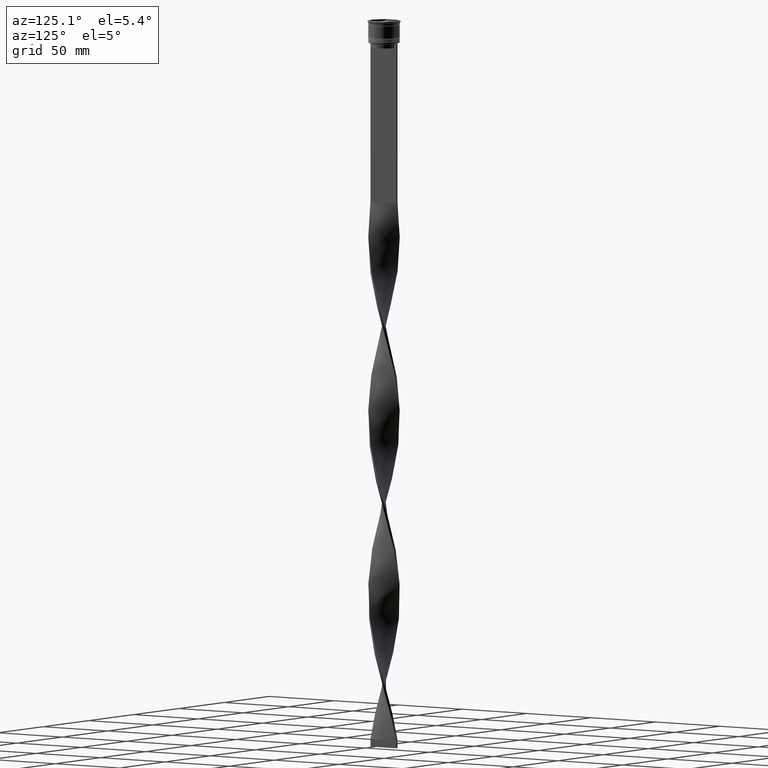
[diagram: clean part render]
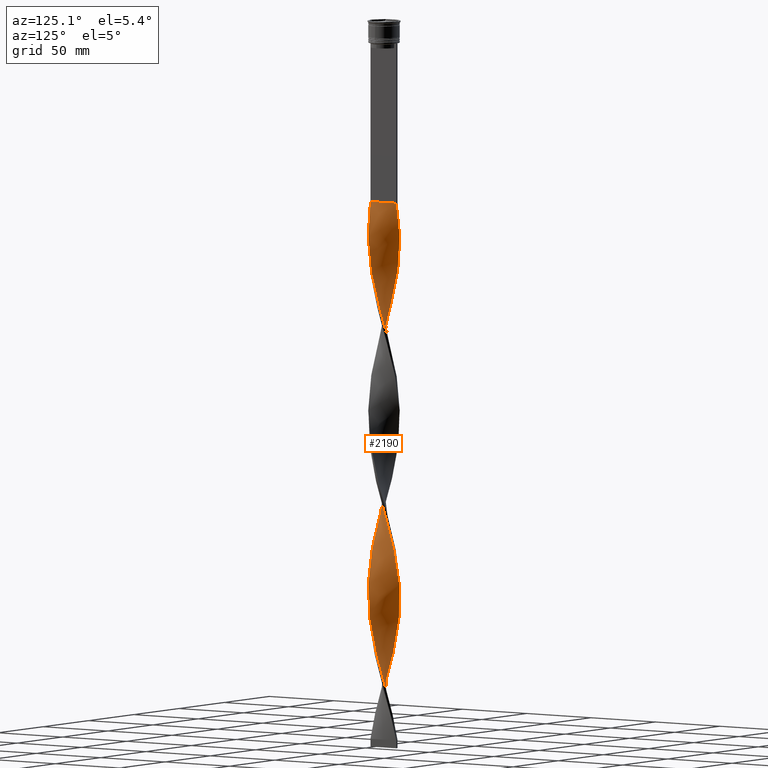
[diagram: same view with one face highlighted and labeled with its STEP entity id]
A machine part, auxiliary view. The second image highlights one B-rep face of the part: STEP entity #2190.
In plain terms, the highlighted face is a freeform B-spline surface patch.
Its self-contained STEP definition (entity closure, byte-faithful):
#2 = CARTESIAN_POINT ( 'NONE',  ( 4.836374126534755291, -8.784758693793774498, -131.5909090909090935 ) ) ;
#17 = CARTESIAN_POINT ( 'NONE',  ( 8.048641294001544821, 5.981795158687156722, -313.4848484848484986 ) ) ;
#19 = CARTESIAN_POINT ( 'NONE',  ( -9.159564155400591545, 4.144791077655442635, -269.3106060606060623 ) ) ;
#41 = CARTESIAN_POINT ( 'NONE',  ( -9.791478290104359772, 2.165514464143550644, -396.6363636363636260 ) ) ;
#43 = CARTESIAN_POINT ( 'NONE',  ( 7.115419520218548399, -7.066350193083622777, -370.6515151515151842 ) ) ;
#58 = CARTESIAN_POINT ( 'NONE',  ( -8.048641294001546598, -5.981795158687154945, -427.8181818181818130 ) ) ;
#60 = CARTESIAN_POINT ( 'NONE',  ( -1.396350487056339684, -9.956260036359488197, -336.8712121212120110 ) ) ;
#66 = CARTESIAN_POINT ( 'NONE',  ( 1.396350487056334355, 9.956260036359488197, -222.5378787878787534 ) ) ;
#80 = CARTESIAN_POINT ( 'NONE',  ( 10.00000000000000533, 0.7499999999999994449, -401.8333333333333144 ) ) ;
#89 = CARTESIAN_POINT ( 'NONE',  ( 9.636597638877828942, 2.865814812699132741, -180.9621212121212182 ) ) ;
#106 = CARTESIAN_POINT ( 'NONE',  ( 5.464672468518299020, -8.438854389437562276, -362.8560606060606233 ) ) ;
#115 = CARTESIAN_POINT ( 'NONE',  ( 8.476467727406435060, -5.406144972209745880, -149.7803030303030312 ) ) ;
#130 = CARTESIAN_POINT ( 'NONE',  ( 7.620814860596668794, -6.557445345164574668, -373.2499999999999432 ) ) ;
#152 = CARTESIAN_POINT ( 'NONE',  ( 7.575255041002665557, -6.610024179840427117, -264.1136363636363171 ) ) ;
#154 = CARTESIAN_POINT ( 'NONE',  ( -8.476467727406427954, -5.406144972209742328, -425.2196969696969404 ) ) ;
#155 = CARTESIAN_POINT ( 'NONE',  ( 6.610024179840428005, -7.575255041002671774, -139.3863636363636260 ) ) ;
#170 = CARTESIAN_POINT ( 'NONE',  ( 0.6807823013221528941, 10.00495054751429613, -453.8030303030303116 ) ) ;
#176 = CARTESIAN_POINT ( 'NONE',  ( -9.656198271192604210, -2.799061189350513512, -186.1590909090908781 ) ) ;
#178 = CARTESIAN_POINT ( 'NONE',  ( 7.620814860596664353, 6.557445345164567563, -316.0833333333332575 ) ) ;
#180 = CARTESIAN_POINT ( 'NONE',  ( 9.791478290104370430, 2.165514464143550200, -407.0303030303030027 ) ) ;
#196 = CARTESIAN_POINT ( 'NONE',  ( -9.636597638877821836, 2.865814812699130076, -165.3712121212121247 ) ) ;
#198 = CARTESIAN_POINT ( 'NONE',  ( -8.784758693793767392, 4.836374126534752627, -157.5757575757575921 ) ) ;
#199 = CARTESIAN_POINT ( 'NONE',  ( -6.037348324179363068, -8.007054715220110808, -438.2121212121212466 ) ) ;
#200 = CARTESIAN_POINT ( 'NONE',  ( -9.636597638877828942, -2.865814812699133629, -295.2954545454545041 ) ) ;
#215 = CARTESIAN_POINT ( 'NONE',  ( -9.999999999999998224, 0.7500000000000008882, -173.1666666666666856 ) ) ;
#219 = CARTESIAN_POINT ( 'NONE',  ( -10.05364105866909341, 0.03478588441203076670, -404.4318181818180733 ) ) ;
#220 = CARTESIAN_POINT ( 'NONE',  ( -6.037348324179364845, 8.007054715220117913, -251.1212121212121247 ) ) ;
#236 = CARTESIAN_POINT ( 'NONE',  ( -5.406144972209740551, 8.476467727406427954, -139.3863636363636260 ) ) ;
#241 = CARTESIAN_POINT ( 'NONE',  ( 2.097705838203419937, -9.806229153776046203, -240.7272727272727479 ) ) ;
#243 = CARTESIAN_POINT ( 'NONE',  ( 2.165514464143552420, 9.791478290104359772, -339.4696969696969973 ) ) ;
#245 = CARTESIAN_POINT ( 'NONE',  ( -5.406144972209749433, -8.476467727406431507, -321.2803030303030027 ) ) ;
#266 = CARTESIAN_POINT ( 'NONE',  ( -4.775468024932588484, 8.818015941403508862, -136.7878787878787818 ) ) ;
#269 = CARTESIAN_POINT ( 'NONE',  ( 9.636597638877821836, -2.865814812699135850, -279.7045454545453822 ) ) ;
#270 = CARTESIAN_POINT ( 'NONE',  ( -9.656198271192609539, 2.799061189350521062, -274.5075757575757507 ) ) ;
#271 = CARTESIAN_POINT ( 'NONE',  ( 8.818015941403514191, -4.775468024932593814, -381.0454545454545610 ) ) ;
#285 = CARTESIAN_POINT ( 'NONE',  ( -2.165514464143551088, -9.791478290104359772, -225.1363636363636260 ) ) ;
#289 = CARTESIAN_POINT ( 'NONE',  ( -6.610024179840428893, 7.575255041002672662, -253.7196969696969973 ) ) ;
#306 = CARTESIAN_POINT ( 'NONE',  ( -6.037348324179363068, -8.007054715220110808, -438.2121212121212466 ) ) ;
#310 = CARTESIAN_POINT ( 'NONE',  ( 6.610024179840428893, -7.575255041002672662, -139.3863636363635976 ) ) ;
#335 = CARTESIAN_POINT ( 'NONE',  ( 9.159564155400587993, 4.144791077655435529, -305.6893939393939945 ) ) ;
#339 = CARTESIAN_POINT ( 'NONE',  ( 2.097705838203425266, 9.806229153776049756, -219.9393939393939377 ) ) ;
#351 = CARTESIAN_POINT ( 'NONE',  ( -9.407881213296597878, -3.471926133502973411, -417.4242424242424363 ) ) ;
#354 = CARTESIAN_POINT ( 'NONE',  ( -7.620814860596667906, 6.557445345164575556, -258.9166666666666288 ) ) ;
#369 = CARTESIAN_POINT ( 'NONE',  ( 6.037348324179360404, 8.007054715220112584, -323.8787878787878753 ) ) ;
#371 = CARTESIAN_POINT ( 'NONE',  ( -6.557445345164575556, -7.620814860596666129, -316.0833333333332575 ) ) ;
#372 = CARTESIAN_POINT ( 'NONE',  ( 3.471926133502976075, 9.407881213296604983, -443.4090909090909349 ) ) ;
#395 = CARTESIAN_POINT ( 'NONE',  ( -0.7499999999999997780, 3.333333333333337478, -459.0000000000000000 ) ) ;
#397 = CARTESIAN_POINT ( 'NONE',  ( -9.159564155400586216, -4.144791077655436418, -420.0227272727271952 ) ) ;
#399 = CARTESIAN_POINT ( 'NONE',  ( 9.130662998149983167, 4.208075784551211562, -414.8257575757575637 ) ) ;
#404 = CARTESIAN_POINT ( 'NONE',  ( 9.791478290104370430, 2.165514464143550200, -178.3636363636364024 ) ) ;
#416 = CARTESIAN_POINT ( 'NONE',  ( 5.981795158687161162, 8.048641294001550150, -433.0151515151515014 ) ) ;
#423 = CARTESIAN_POINT ( 'NONE',  ( 8.818015941403514191, -4.775468024932593814, -152.3787878787879038 ) ) ;
#433 = CARTESIAN_POINT ( 'NONE',  ( -0.7500000000000014433, -9.999999999999998224, -459.0000000000000000 ) ) ;
#437 = CARTESIAN_POINT ( 'NONE',  ( 1.396350487056334355, 9.956260036359488197, -451.2045454545454959 ) ) ;
#460 = CARTESIAN_POINT ( 'NONE',  ( -9.636597638877828942, -2.865814812699133629, -295.2954545454545041 ) ) ;
#483 = CARTESIAN_POINT ( 'NONE',  ( 0.6807823013221493413, -10.00495054751428903, -235.5303030303030312 ) ) ;
#484 = CARTESIAN_POINT ( 'NONE',  ( -10.00495054751428903, -0.6807823013221502295, -407.0303030303030027 ) ) ;
#485 = CARTESIAN_POINT ( 'NONE',  ( 7.066350193083622777, 7.115419520218547511, -199.1515151515151558 ) ) ;
#501 = CARTESIAN_POINT ( 'NONE',  ( -8.438854389437556947, 5.464672468518296355, -154.9772727272727195 ) ) ;
#502 = CARTESIAN_POINT ( 'NONE',  ( -8.007054715220110808, 6.037348324179362180, -381.0454545454545610 ) ) ;
#503 = CARTESIAN_POINT ( 'NONE',  ( -2.097705838203426598, -9.806229153776049756, -334.2727272727272521 ) ) ;
#516 = ORIENTED_EDGE ( 'NONE', *, *, #1106, .F. ) ;
#523 = CARTESIAN_POINT ( 'NONE',  ( -6.037348324179363068, -8.007054715220110808, -209.5454545454545610 ) ) ;
#525 = CARTESIAN_POINT ( 'NONE',  ( -5.464672468518298132, -8.438854389437555170, -212.1439393939393767 ) ) ;
#526 = CARTESIAN_POINT ( 'NONE',  ( -9.806229153776044427, -2.097705838203423490, -412.2272727272727479 ) ) ;
#529 = CARTESIAN_POINT ( 'NONE',  ( -9.130662998149981391, -4.208075784551210674, -300.4924242424242493 ) ) ;
#547 = CARTESIAN_POINT ( 'NONE',  ( 7.066350193083616560, -7.115419520218544847, -261.5151515151515582 ) ) ;
#549 = CARTESIAN_POINT ( 'NONE',  ( -9.999999999999998224, 0.7500000000000007772, -173.1666666666666856 ) ) ;
#550 = CARTESIAN_POINT ( 'NONE',  ( -9.791478290104359772, 2.165514464143550644, -396.6363636363636260 ) ) ;
#551 = CARTESIAN_POINT ( 'NONE',  ( -7.115419520218547511, 7.066350193083623665, -256.3181818181818130 ) ) ;
#567 = CARTESIAN_POINT ( 'NONE',  ( -9.159564155400586216, -4.144791077655436418, -191.3560606060605949 ) ) ;
#570 = CARTESIAN_POINT ( 'NONE',  ( -7.620814860596663465, -6.557445345164568451, -201.7500000000000000 ) ) ;
#572 = CARTESIAN_POINT ( 'NONE',  ( 5.464672468518299908, 8.438854389437555170, -326.4772727272727479 ) ) ;
#573 = CARTESIAN_POINT ( 'NONE',  ( 10.00495054751429613, -0.6807823013221522279, -396.6363636363636260 ) ) ;
#591 = CARTESIAN_POINT ( 'NONE',  ( 4.775468024932588484, -8.818015941403508862, -251.1212121212121247 ) ) ;
#595 = CARTESIAN_POINT ( 'NONE',  ( 8.438854389437555170, -5.464672468518299020, -269.3106060606060623 ) ) ;
#596 = CARTESIAN_POINT ( 'NONE',  ( -5.464672468518299908, 8.438854389437562276, -248.5227272727272521 ) ) ;
#597 = CARTESIAN_POINT ( 'NONE',  ( -9.956260036359488197, 1.396350487056339018, -279.7045454545454390 ) ) ;
#613 = CARTESIAN_POINT ( 'NONE',  ( -4.836374126534751738, -8.784758693793767392, -214.7424242424242209 ) ) ;
#618 = CARTESIAN_POINT ( 'NONE',  ( 9.130662998149983167, 4.208075784551211562, -186.1590909090908781 ) ) ;
#619 =( BOUNDED_CURVE ( )  B_SPLINE_CURVE ( 2, ( #2916, #4275, #1191, #3935, #1894, #3280, #1260, #2958, #266, #236, #876, #941, #2633, #2988, #1959, #2610, #2253, #2324, #4367, #196, #1619, #3646, #215, #1978, #3691, #3983, #895, #2272, #2653, #567, #1934, #4342, #4006, #2295, #1283, #3315, #523, #3009, #613, #4026, #3360, #1598, #285, #4314, #1553, #1642, #3031, #916, #2936, #3667, #2683, #4391, #591, #3341, #3627, #1308, #547, #4054, #4295, #966, #1914, #3604, #1208, #2583, #3955, #3298, #1572, #1235, #2778, #678, #4419, #3093, #1999, #335, #1687, #4070, #17, #2066, #4116, #2344, #369, #1032, #1333, #1049, #1727, #3381, #1369, #3117, #1706, #635, #1349, #715, #3734, #2047, #2751, #2411, #4134, #2729, #4090, #3076, #3781, #656, #1400, #1007, #2085, #697, #2796, #3442, #41, #2428, #2387, #3407, #3468, #3799, #3760, #3425, #351, #397, #1755, #3142, #58, #1417, #4155, #3713, #306, #1663, #3055, #2703, #987, #4437, #2364, #2023, #433 ),
 .UNSPECIFIED., .F., .T. ) 
 B_SPLINE_CURVE_WITH_KNOTS ( ( 3, 2, 2, 2, 2, 2, 2, 2, 2, 2, 2, 2, 2, 2, 2, 2, 2, 2, 2, 2, 2, 2, 2, 2, 2, 2, 2, 2, 2, 2, 2, 2, 2, 2, 2, 2, 2, 2, 2, 2, 2, 2, 2, 2, 2, 2, 2, 2, 2, 2, 2, 2, 2, 2, 2, 2, 2, 2, 2, 2, 2, 2, 2, 2, 2, 2, 3 ),
 ( 0.000000000000000000, 0.01136363636363636222, 0.02272727272727272443, 0.03409090909090908839, 0.04545454545454544887, 0.05681818181818181629, 0.06818181818181817677, 0.07954545454545454419, 0.09090909090909089774, 0.1022727272727272790, 0.1136363636363636326, 0.1250000000000000000, 0.1363636363636363535, 0.1477272727272727348, 0.1590909090909090884, 0.1704545454545454419, 0.1818181818181817955, 0.1931818181818182045, 0.2045454545454545581, 0.2159090909090909116, 0.2272727272727272652, 0.2386363636363636465, 0.2500000000000000000, 0.2613636363636363535, 0.2727272727272727071, 0.2840909090909091161, 0.2954545454545454697, 0.3068181818181818232, 0.3181818181818181768, 0.3295454545454545303, 0.3409090909090908839, 0.3522727272727272929, 0.3636363636363635909, 0.3750000000000000000, 0.3863636363636364091, 0.3977272727272727071, 0.4090909090909091161, 0.4204545454545454697, 0.4318181818181818232, 0.4431818181818181768, 0.4545454545454545303, 0.4659090909090908839, 0.4772727272727272929, 0.4886363636363635909, 0.5000000000000000000, 0.5113636363636363535, 0.5227272727272727071, 0.5340909090909090606, 0.5454545454545454142, 0.5568181818181817677, 0.5681818181818182323, 0.5795454545454545858, 0.5909090909090909394, 0.6022727272727272929, 0.6136363636363636465, 0.6250000000000000000, 0.6363636363636363535, 0.6477272727272727071, 0.6590909090909090606, 0.6704545454545454142, 0.6818181818181817677, 0.6931818181818182323, 0.7045454545454545858, 0.7159090909090909394, 0.7272727272727271819, 0.7386363636363636465, 0.7500000000000000000 ),
 .UNSPECIFIED. ) 
 CURVE ( )  GEOMETRIC_REPRESENTATION_ITEM ( )  RATIONAL_B_SPLINE_CURVE ( ( 1.000000000000000000, 0.9974521146102535152, 1.000000000000000000, 0.9974521146102535152, 1.000000000000000000, 0.9974521146102535152, 1.000000000000000000, 0.9974521146102535152, 1.000000000000000000, 0.9974521146102535152, 1.000000000000000000, 0.9974521146102535152, 1.000000000000000000, 0.9974521146102535152, 1.000000000000000000, 0.9974521146102535152, 1.000000000000000000, 0.9974521146102535152, 1.000000000000000000, 0.9974521146102535152, 1.000000000000000000, 0.9974521146102535152, 1.000000000000000000, 0.9974521146102535152, 1.000000000000000000, 0.9974521146102535152, 1.000000000000000000, 0.9974521146102535152, 1.000000000000000000, 0.9974521146102535152, 1.000000000000000000, 0.9974521146102535152, 1.000000000000000000, 0.9974521146102535152, 1.000000000000000000, 0.9974521146102535152, 1.000000000000000000, 0.9974521146102535152, 1.000000000000000000, 0.9974521146102535152, 1.000000000000000000, 0.9974521146102535152, 1.000000000000000000, 0.9974521146102535152, 1.000000000000000000, 0.9974521146102535152, 1.000000000000000000, 0.9974521146102535152, 1.000000000000000000, 0.9974521146102535152, 1.000000000000000000, 0.9974521146102535152, 1.000000000000000000, 0.9974521146102535152, 1.000000000000000000, 0.9974521146102535152, 1.000000000000000000, 0.9974521146102535152, 1.000000000000000000, 0.9974521146102535152, 1.000000000000000000, 0.9974521146102535152, 1.000000000000000000, 0.9974521146102535152, 1.000000000000000000, 0.9974521146102535152, 1.000000000000000000, 0.9974521146102535152, 1.000000000000000000, 0.9974521146102535152, 1.000000000000000000, 0.9974521146102535152, 1.000000000000000000, 0.9974521146102535152, 1.000000000000000000, 0.9974521146102535152, 1.000000000000000000, 0.9974521146102535152, 1.000000000000000000, 0.9974521146102535152, 1.000000000000000000, 0.9974521146102535152, 1.000000000000000000, 0.9974521146102535152, 1.000000000000000000, 0.9974521146102535152, 1.000000000000000000, 0.9974521146102535152, 1.000000000000000000, 0.9974521146102535152, 1.000000000000000000, 0.9974521146102535152, 1.000000000000000000, 0.9974521146102535152, 1.000000000000000000, 0.9974521146102535152, 1.000000000000000000, 0.9974521146102535152, 1.000000000000000000, 0.9974521146102535152, 1.000000000000000000, 0.9974521146102535152, 1.000000000000000000, 0.9974521146102535152, 1.000000000000000000, 0.9974521146102535152, 1.000000000000000000, 0.9974521146102535152, 1.000000000000000000, 0.9974521146102535152, 1.000000000000000000, 0.9974521146102535152, 1.000000000000000000, 0.9974521146102535152, 1.000000000000000000, 0.9974521146102535152, 1.000000000000000000, 0.9974521146102535152, 1.000000000000000000, 0.9974521146102535152, 1.000000000000000000, 0.9974521146102535152, 1.000000000000000000, 0.9974521146102535152, 1.000000000000000000, 0.9974521146102535152, 1.000000000000000000, 0.9974521146102535152, 1.000000000000000000, 0.9974521146102535152, 1.000000000000000000, 0.9974521146102535152, 1.000000000000000000 ) ) 
 REPRESENTATION_ITEM ( '' )  );
#635 = CARTESIAN_POINT ( 'NONE',  ( 0.03478588441202989240, 10.05364105866909341, -347.2651515151514445 ) ) ;
#638 = CARTESIAN_POINT ( 'NONE',  ( 8.476467727406435060, -5.406144972209745880, -149.7803030303030596 ) ) ;
#656 = CARTESIAN_POINT ( 'NONE',  ( -7.575255041002665557, 6.610024179840425340, -378.4469696969697452 ) ) ;
#658 = CARTESIAN_POINT ( 'NONE',  ( 8.438854389437562276, 5.464672468518299908, -191.3560606060605949 ) ) ;
#659 = CARTESIAN_POINT ( 'NONE',  ( 1.396350487056334355, 9.956260036359488197, -451.2045454545454959 ) ) ;
#670 = CARTESIAN_POINT ( 'NONE',  ( 8.438854389437562276, 5.464672468518299908, -191.3560606060605949 ) ) ;
#678 = CARTESIAN_POINT ( 'NONE',  ( 9.956260036359481091, 1.396350487056334133, -295.2954545454545041 ) ) ;
#681 = CARTESIAN_POINT ( 'NONE',  ( -2.865814812699129632, 9.636597638877828942, -238.1287878787878469 ) ) ;
#683 = CARTESIAN_POINT ( 'NONE',  ( 6.557445345164574668, 7.620814860596667017, -430.4166666666666856 ) ) ;
#697 = CARTESIAN_POINT ( 'NONE',  ( -9.130662998149976062, 4.208075784551208898, -388.8409090909090651 ) ) ;
#699 = CARTESIAN_POINT ( 'NONE',  ( 8.438854389437562276, 5.464672468518299908, -420.0227272727271952 ) ) ;
#715 = CARTESIAN_POINT ( 'NONE',  ( -1.396350487056332579, 9.956260036359481091, -352.4621212121211897 ) ) ;
#717 = CARTESIAN_POINT ( 'NONE',  ( -3.471926133502977851, -9.407881213296603207, -329.0757575757575637 ) ) ;
#742 = CARTESIAN_POINT ( 'NONE',  ( 9.383630318513906943, 3.536945298625171041, -412.2272727272727479 ) ) ;
#749 = CARTESIAN_POINT ( 'NONE',  ( -0.7499999999999988898, 10.00000000000000533, -230.3333333333333428 ) ) ;
#763 = CARTESIAN_POINT ( 'NONE',  ( 2.097705838203425266, 9.806229153776049756, -448.6060606060606233 ) ) ;
#770 = CARTESIAN_POINT ( 'NONE',  ( -4.208075784551211562, 9.130662998149981391, -243.3257575757575637 ) ) ;
#783 = CARTESIAN_POINT ( 'NONE',  ( 0.7500000000000001110, -10.00000000000000533, -344.6666666666666856 ) ) ;
#790 = CARTESIAN_POINT ( 'NONE',  ( 9.806229153776049756, -2.097705838203426598, -162.7727272727272805 ) ) ;
#813 = CARTESIAN_POINT ( 'NONE',  ( 8.007054715220117913, 6.037348324179364845, -193.9545454545454675 ) ) ;
#831 = CARTESIAN_POINT ( 'NONE',  ( -2.097705838203423490, 9.806229153776044427, -126.3939393939393909 ) ) ;
#833 = CARTESIAN_POINT ( 'NONE',  ( -1.465214115587970989, -9.946358941330903036, -456.4015151515151274 ) ) ;
#834 = CARTESIAN_POINT ( 'NONE',  ( -8.818015941403515967, 4.775468024932590261, -266.7121212121212466 ) ) ;
#853 = CARTESIAN_POINT ( 'NONE',  ( -6.557445345164569339, 7.620814860596663465, -144.5833333333333428 ) ) ;
#855 = CARTESIAN_POINT ( 'NONE',  ( 9.656198271192604210, 2.799061189350513956, -300.4924242424241925 ) ) ;
#856 = CARTESIAN_POINT ( 'NONE',  ( 9.383630318513906943, 3.536945298625171041, -412.2272727272727479 ) ) ;
#876 = CARTESIAN_POINT ( 'NONE',  ( -5.981795158687155833, 8.048641294001546598, -141.9848484848484986 ) ) ;
#878 = CARTESIAN_POINT ( 'NONE',  ( -9.130662998149976062, 4.208075784551209786, -160.1742424242424647 ) ) ;
#879 = CARTESIAN_POINT ( 'NONE',  ( 3.536945298625170153, 9.383630318513899837, -334.2727272727272521 ) ) ;
#880 = CARTESIAN_POINT ( 'NONE',  ( 9.656198271192611315, -2.799061189350517065, -388.8409090909090651 ) ) ;
#895 = CARTESIAN_POINT ( 'NONE',  ( -9.806229153776044427, -2.097705838203423490, -183.5606060606060908 ) ) ;
#898 = CARTESIAN_POINT ( 'NONE',  ( 0.03478588441202978832, 10.05364105866909341, -118.5984848484848442 ) ) ;
#899 = CARTESIAN_POINT ( 'NONE',  ( 0.03478588441202978832, 10.05364105866909341, -347.2651515151514445 ) ) ;
#900 = CARTESIAN_POINT ( 'NONE',  ( -3.471926133502977851, -9.407881213296603207, -329.0757575757575637 ) ) ;
#916 = CARTESIAN_POINT ( 'NONE',  ( 1.396350487056330358, -9.956260036359481091, -238.1287878787878469 ) ) ;
#918 = CARTESIAN_POINT ( 'NONE',  ( 9.956260036359481091, 1.396350487056333689, -295.2954545454545041 ) ) ;
#919 = CARTESIAN_POINT ( 'NONE',  ( -8.818015941403515967, 4.775468024932590261, -266.7121212121212466 ) ) ;
#920 = CARTESIAN_POINT ( 'NONE',  ( -8.784758693793776274, -4.836374126534751738, -303.0909090909091219 ) ) ;
#931 = CARTESIAN_POINT ( 'NONE',  ( 0.7500000000000001110, -10.00000000000000533, -116.0000000000000000 ) ) ;
#941 = CARTESIAN_POINT ( 'NONE',  ( -6.557445345164569339, 7.620814860596662577, -144.5833333333333428 ) ) ;
#945 = CARTESIAN_POINT ( 'NONE',  ( 5.406144972209748545, 8.476467727406433283, -206.9469696969697168 ) ) ;
#966 = CARTESIAN_POINT ( 'NONE',  ( 8.438854389437555170, -5.464672468518299020, -269.3106060606060623 ) ) ;
#969 = CARTESIAN_POINT ( 'NONE',  ( 6.037348324179364845, -8.007054715220117913, -136.7878787878787818 ) ) ;
#987 = CARTESIAN_POINT ( 'NONE',  ( -3.536945298625169265, -9.383630318513899837, -448.6060606060606233 ) ) ;
#991 = CARTESIAN_POINT ( 'NONE',  ( 6.557445345164574668, 7.620814860596667906, -201.7500000000000000 ) ) ;
#1007 = CARTESIAN_POINT ( 'NONE',  ( -8.438854389437556947, 5.464672468518296355, -383.6439393939393767 ) ) ;
#1009 = CARTESIAN_POINT ( 'NONE',  ( 9.407881213296603207, -3.471926133502977851, -157.5757575757575921 ) ) ;
#1010 = CARTESIAN_POINT ( 'NONE',  ( 7.066350193083622777, 7.115419520218547511, -427.8181818181818130 ) ) ;
#1031 = CARTESIAN_POINT ( 'NONE',  ( -0.7499999999999988898, 10.00000000000000533, -459.0000000000000000 ) ) ;
#1032 = CARTESIAN_POINT ( 'NONE',  ( 5.464672468518299908, 8.438854389437555170, -326.4772727272727479 ) ) ;
#1034 = CARTESIAN_POINT ( 'NONE',  ( 9.791478290104370430, 2.165514464143550200, -407.0303030303030027 ) ) ;
#1049 = CARTESIAN_POINT ( 'NONE',  ( 4.208075784551212450, 9.130662998149976062, -331.6742424242423795 ) ) ;
#1052 = CARTESIAN_POINT ( 'NONE',  ( 10.00495054751429613, -0.6807823013221522279, -396.6363636363636260 ) ) ;
#1069 = CARTESIAN_POINT ( 'NONE',  ( -0.7500000000000014433, -9.999999999999998224, -459.0000000000000000 ) ) ;
#1072 = CARTESIAN_POINT ( 'NONE',  ( -4.144791077655442635, -9.159564155400591545, -326.4772727272727479 ) ) ;
#1079 = CARTESIAN_POINT ( 'NONE',  ( 7.575255041002671774, 6.610024179840428893, -196.5530303030303116 ) ) ;
#1100 = CARTESIAN_POINT ( 'NONE',  ( 6.610024179840428893, -7.575255041002672662, -368.0530303030302548 ) ) ;
#1106 = EDGE_CURVE ( 'NONE', #2673, #3129, #619, .T. ) ;
#1108 = CARTESIAN_POINT ( 'NONE',  ( -2.865814812699129632, 9.636597638877828942, -238.1287878787878469 ) ) ;
#1122 = CARTESIAN_POINT ( 'NONE',  ( 4.208075784551211562, -9.130662998149983167, -357.6590909090909918 ) ) ;
#1148 = CARTESIAN_POINT ( 'NONE',  ( 9.956260036359488197, -1.396350487056333467, -165.3712121212121247 ) ) ;
#1173 = CARTESIAN_POINT ( 'NONE',  ( -9.806229153776044427, -2.097705838203423490, -183.5606060606060908 ) ) ;
#1174 = CARTESIAN_POINT ( 'NONE',  ( -1.396350487056332357, 9.956260036359481091, -352.4621212121211329 ) ) ;
#1175 = CARTESIAN_POINT ( 'NONE',  ( -9.159564155400591545, 4.144791077655441747, -269.3106060606060623 ) ) ;
#1191 = CARTESIAN_POINT ( 'NONE',  ( -0.6807823013221514508, 10.00495054751428903, -121.1969696969697026 ) ) ;
#1193 = CARTESIAN_POINT ( 'NONE',  ( -4.208075784551208010, -9.130662998149977838, -217.3409090909090651 ) ) ;
#1194 = CARTESIAN_POINT ( 'NONE',  ( 8.476467727406429731, 5.406144972209740551, -310.8863636363635692 ) ) ;
#1195 = CARTESIAN_POINT ( 'NONE',  ( -9.806229153776049756, 2.097705838203426154, -277.1060606060606233 ) ) ;
#1208 = CARTESIAN_POINT ( 'NONE',  ( 9.383630318513899837, -3.536945298625170153, -277.1060606060606233 ) ) ;
#1211 = CARTESIAN_POINT ( 'NONE',  ( -10.05364105866909341, 0.03478588441203076670, -175.7651515151515014 ) ) ;
#1213 = CARTESIAN_POINT ( 'NONE',  ( -4.208075784551208010, -9.130662998149977838, -446.0075757575756938 ) ) ;
#1214 = CARTESIAN_POINT ( 'NONE',  ( 6.610024179840428005, -7.575255041002671774, -368.0530303030302548 ) ) ;
#1215 = EDGE_CURVE ( 'NONE', #2709, #2673, #3949, .T. ) ;
#1226 = ORIENTED_EDGE ( 'NONE', *, *, #2913, .T. ) ;
#1235 = CARTESIAN_POINT ( 'NONE',  ( 10.05364105866909341, -0.03478588441202772746, -290.0984848484848726 ) ) ;
#1238 = CARTESIAN_POINT ( 'NONE',  ( -5.981795158687155833, 8.048641294001546598, -141.9848484848484986 ) ) ;
#1240 = CARTESIAN_POINT ( 'NONE',  ( -9.956260036359481091, -1.396350487056332801, -409.6287878787878185 ) ) ;
#1242 = CARTESIAN_POINT ( 'NONE',  ( -2.799061189350520618, -9.656198271192609539, -331.6742424242423795 ) ) ;
#1260 = CARTESIAN_POINT ( 'NONE',  ( -3.471926133502974299, 9.407881213296597878, -131.5909090909090935 ) ) ;
#1263 = CARTESIAN_POINT ( 'NONE',  ( 4.775468024932588484, -8.818015941403508862, -251.1212121212121247 ) ) ;
#1265 = CARTESIAN_POINT ( 'NONE',  ( -7.575255041002665557, 6.610024179840426228, -378.4469696969697452 ) ) ;
#1266 = CARTESIAN_POINT ( 'NONE',  ( -6.557445345164575556, -7.620814860596665241, -316.0833333333332575 ) ) ;
#1283 = CARTESIAN_POINT ( 'NONE',  ( -7.115419520218544847, -7.066350193083616560, -204.3484848484848726 ) ) ;
#1286 = CARTESIAN_POINT ( 'NONE',  ( 10.05364105866909341, -0.03478588441202762338, -290.0984848484849294 ) ) ;
#1289 = CARTESIAN_POINT ( 'NONE',  ( 9.383630318513906943, 3.536945298625171041, -183.5606060606060908 ) ) ;
#1291 = CARTESIAN_POINT ( 'NONE',  ( 2.097705838203425266, 9.806229153776049756, -448.6060606060606233 ) ) ;
#1308 = CARTESIAN_POINT ( 'NONE',  ( 6.557445345164568451, -7.620814860596663465, -258.9166666666666288 ) ) ;
#1314 = CARTESIAN_POINT ( 'NONE',  ( 2.865814812699132297, -9.636597638877828942, -123.7954545454545325 ) ) ;
#1315 = CARTESIAN_POINT ( 'NONE',  ( 4.144791077655440859, 9.159564155400591545, -440.8106060606060055 ) ) ;
#1333 = CARTESIAN_POINT ( 'NONE',  ( 4.836374126534752627, 8.784758693793767392, -329.0757575757575637 ) ) ;
#1336 = CARTESIAN_POINT ( 'NONE',  ( 7.575255041002672662, 6.610024179840429781, -196.5530303030303116 ) ) ;
#1349 = CARTESIAN_POINT ( 'NONE',  ( -0.6807823013221514508, 10.00495054751428903, -349.8636363636363740 ) ) ;
#1353 = CARTESIAN_POINT ( 'NONE',  ( -0.03478588441202849074, 10.05364105866910052, -227.7348484848484702 ) ) ;
#1369 = CARTESIAN_POINT ( 'NONE',  ( 2.165514464143552864, 9.791478290104359772, -339.4696969696969973 ) ) ;
#1374 = CARTESIAN_POINT ( 'NONE',  ( -9.407881213296604983, 3.471926133502976963, -271.9090909090909349 ) ) ;
#1400 = CARTESIAN_POINT ( 'NONE',  ( -8.007054715220110808, 6.037348324179362180, -381.0454545454545610 ) ) ;
#1401 = CARTESIAN_POINT ( 'NONE',  ( 5.406144972209748545, 8.476467727406433283, -435.6136363636363171 ) ) ;
#1417 = CARTESIAN_POINT ( 'NONE',  ( -7.620814860596662577, -6.557445345164568451, -430.4166666666666856 ) ) ;
#1419 = CARTESIAN_POINT ( 'NONE',  ( -4.775468024932591149, -8.818015941403515967, -323.8787878787878753 ) ) ;
#1426 = CARTESIAN_POINT ( 'NONE',  ( 0.6807823013221528941, 10.00495054751429613, -225.1363636363636260 ) ) ;
#1439 = CARTESIAN_POINT ( 'NONE',  ( 8.784758693793774498, 4.836374126534754403, -417.4242424242424363 ) ) ;
#1465 = CARTESIAN_POINT ( 'NONE',  ( 2.165514464143551976, -9.791478290104366877, -349.8636363636363740 ) ) ;
#1473 = CARTESIAN_POINT ( 'NONE',  ( 9.946358941330908365, 1.465214115587969879, -175.7651515151515014 ) ) ;
#1487 = CARTESIAN_POINT ( 'NONE',  ( -7.575255041002672662, -6.610024179840428893, -310.8863636363635692 ) ) ;
#1497 = EDGE_CURVE ( 'NONE', #3129, #3522, #1890, .T. ) ;
#1511 = CARTESIAN_POINT ( 'NONE',  ( 8.007054715220114360, -6.037348324179360404, -266.7121212121212466 ) ) ;
#1513 = CARTESIAN_POINT ( 'NONE',  ( 6.610024179840427117, 7.575255041002662892, -321.2803030303030596 ) ) ;
#1514 = CARTESIAN_POINT ( 'NONE',  ( 6.557445345164574668, 7.620814860596667017, -201.7499999999999716 ) ) ;
#1538 = CARTESIAN_POINT ( 'NONE',  ( -10.00495054751428903, -0.6807823013221502295, -178.3636363636364024 ) ) ;
#1539 = CARTESIAN_POINT ( 'NONE',  ( 9.407881213296599654, 3.471926133502971190, -303.0909090909091219 ) ) ;
#1541 = CARTESIAN_POINT ( 'NONE',  ( -8.048641294001550150, 5.981795158687161162, -261.5151515151515582 ) ) ;
#1553 = CARTESIAN_POINT ( 'NONE',  ( -0.7500000000000014433, -9.999999999999998224, -230.3333333333333428 ) ) ;
#1555 = CARTESIAN_POINT ( 'NONE',  ( -2.865814812699130520, -9.636597638877821836, -222.5378787878787250 ) ) ;
#1557 = CARTESIAN_POINT ( 'NONE',  ( -3.536945298625169265, -9.383630318513899837, -448.6060606060606233 ) ) ;
#1558 = CARTESIAN_POINT ( 'NONE',  ( 0.7500000000000001110, -10.00000000000000533, -344.6666666666666856 ) ) ;
#1572 = CARTESIAN_POINT ( 'NONE',  ( 9.999999999999998224, -0.7500000000000021094, -287.5000000000000568 ) ) ;
#1574 = CARTESIAN_POINT ( 'NONE',  ( -3.471926133502974299, 9.407881213296597878, -131.5909090909090935 ) ) ;
#1576 = CARTESIAN_POINT ( 'NONE',  ( 0.7500000000000001110, -10.00000000000000533, -116.0000000000000000 ) ) ;
#1577 = CARTESIAN_POINT ( 'NONE',  ( -5.464672468518299908, 8.438854389437562276, -248.5227272727272521 ) ) ;
#1598 = CARTESIAN_POINT ( 'NONE',  ( -2.865814812699130520, -9.636597638877821836, -222.5378787878787534 ) ) ;
#1600 = CARTESIAN_POINT ( 'NONE',  ( 2.799061189350514844, -9.656198271192604210, -243.3257575757575637 ) ) ;
#1603 = CARTESIAN_POINT ( 'NONE',  ( -3.471926133502974299, 9.407881213296597878, -360.2575757575757507 ) ) ;
#1604 = CARTESIAN_POINT ( 'NONE',  ( -8.007054715220119689, -6.037348324179360404, -308.2878787878788103 ) ) ;
#1619 = CARTESIAN_POINT ( 'NONE',  ( -9.791478290104359772, 2.165514464143550644, -167.9696969696969973 ) ) ;
#1623 = CARTESIAN_POINT ( 'NONE',  ( 9.130662998149976062, -4.208075784551212450, -274.5075757575757507 ) ) ;
#1626 = CARTESIAN_POINT ( 'NONE',  ( -9.806229153776049756, 2.097705838203426154, -277.1060606060606233 ) ) ;
#1628 = CARTESIAN_POINT ( 'NONE',  ( -9.407881213296604983, 3.471926133502976963, -271.9090909090909349 ) ) ;
#1642 = CARTESIAN_POINT ( 'NONE',  ( -0.03478588441203151610, -10.05364105866909341, -232.9318181818181870 ) ) ;
#1645 = CARTESIAN_POINT ( 'NONE',  ( -10.00495054751429613, 0.6807823013221533381, -282.3030303030303116 ) ) ;
#1663 = CARTESIAN_POINT ( 'NONE',  ( -5.464672468518298132, -8.438854389437555170, -440.8106060606060055 ) ) ;
#1668 = CARTESIAN_POINT ( 'NONE',  ( 10.00495054751429613, -0.6807823013221522279, -167.9696969696969973 ) ) ;
#1687 = CARTESIAN_POINT ( 'NONE',  ( 8.818015941403510638, 4.775468024932583155, -308.2878787878788103 ) ) ;
#1690 = CARTESIAN_POINT ( 'NONE',  ( 0.6807823013221528941, 10.00495054751429613, -225.1363636363636260 ) ) ;
#1706 = CARTESIAN_POINT ( 'NONE',  ( 0.7500000000000002220, 9.999999999999998224, -344.6666666666666856 ) ) ;
#1708 = CARTESIAN_POINT ( 'NONE',  ( -8.048641294001550150, 5.981795158687161162, -261.5151515151515582 ) ) ;
#1710 = CARTESIAN_POINT ( 'NONE',  ( 9.130662998149981391, 4.208075784551210674, -414.8257575757575637 ) ) ;
#1727 = CARTESIAN_POINT ( 'NONE',  ( 3.536945298625170153, 9.383630318513899837, -334.2727272727272521 ) ) ;
#1731 = CARTESIAN_POINT ( 'NONE',  ( -10.00000000000000533, -0.7499999999999983347, -287.5000000000000568 ) ) ;
#1755 = CARTESIAN_POINT ( 'NONE',  ( -8.818015941403507085, -4.775468024932588484, -422.6212121212121247 ) ) ;
#1758 = CARTESIAN_POINT ( 'NONE',  ( 4.775468024932594702, 8.818015941403514191, -438.2121212121212466 ) ) ;
#1763 = CARTESIAN_POINT ( 'NONE',  ( 9.407881213296603207, -3.471926133502977851, -157.5757575757575921 ) ) ;
#1779 = CARTESIAN_POINT ( 'NONE',  ( 8.818015941403514191, -4.775468024932593814, -381.0454545454545610 ) ) ;
#1785 = CARTESIAN_POINT ( 'NONE',  ( -2.165514464143549311, 9.791478290104370430, -235.5303030303030312 ) ) ;
#1801 = CARTESIAN_POINT ( 'NONE',  ( -8.438854389437562276, -5.464672468518299020, -305.6893939393939945 ) ) ;
#1808 = CARTESIAN_POINT ( 'NONE',  ( 2.865814812699132297, -9.636597638877828942, -123.7954545454545467 ) ) ;
#1830 = CARTESIAN_POINT ( 'NONE',  ( 4.836374126534755291, -8.784758693793774498, -360.2575757575757507 ) ) ;
#1837 = CARTESIAN_POINT ( 'NONE',  ( 10.00495054751429613, -0.6807823013221522279, -167.9696969696969973 ) ) ;
#1851 = CARTESIAN_POINT ( 'NONE',  ( 6.557445345164568451, -7.620814860596664353, -258.9166666666666288 ) ) ;
#1853 = CARTESIAN_POINT ( 'NONE',  ( -9.656198271192604210, -2.799061189350513512, -414.8257575757575637 ) ) ;
#1854 = CARTESIAN_POINT ( 'NONE',  ( 2.799061189350515289, 9.656198271192613092, -217.3409090909090651 ) ) ;
#1869 = CARTESIAN_POINT ( 'NONE',  ( -6.557445345164569339, 7.620814860596663465, -373.2499999999999432 ) ) ;
#1870 = CARTESIAN_POINT ( 'NONE',  ( -0.6807823013221542263, -10.00495054751429613, -339.4696969696969973 ) ) ;
#1890 = B_SPLINE_CURVE_WITH_KNOTS ( 'NONE', 3,
 ( #1069, #4205, #395, #1031 ),
 .UNSPECIFIED., .F., .F.,
 ( 4, 4 ),
 ( 0.000000000000000000, 1.000000000000000000 ),
 .UNSPECIFIED. ) ;
#1894 = CARTESIAN_POINT ( 'NONE',  ( -2.097705838203423490, 9.806229153776044427, -126.3939393939393909 ) ) ;
#1896 = CARTESIAN_POINT ( 'NONE',  ( -3.536945298625169265, -9.383630318513899837, -219.9393939393939377 ) ) ;
#1897 = CARTESIAN_POINT ( 'NONE',  ( -8.784758693793767392, 4.836374126534752627, -386.2424242424242493 ) ) ;
#1899 = CARTESIAN_POINT ( 'NONE',  ( -7.620814860596667017, 6.557445345164575556, -258.9166666666666288 ) ) ;
#1914 = CARTESIAN_POINT ( 'NONE',  ( 8.784758693793767392, -4.836374126534752627, -271.9090909090909349 ) ) ;
#1916 = CARTESIAN_POINT ( 'NONE',  ( -9.407881213296597878, -3.471926133502973411, -188.7575757575757507 ) ) ;
#1917 = CARTESIAN_POINT ( 'NONE',  ( -2.865814812699130520, -9.636597638877821836, -451.2045454545454959 ) ) ;
#1918 = CARTESIAN_POINT ( 'NONE',  ( -8.476467727406433283, 5.406144972209748545, -264.1136363636363171 ) ) ;
#1934 = CARTESIAN_POINT ( 'NONE',  ( -8.818015941403507085, -4.775468024932588484, -193.9545454545454675 ) ) ;
#1937 = CARTESIAN_POINT ( 'NONE',  ( -0.7500000000000013323, -9.999999999999998224, -230.3333333333333428 ) ) ;
#1938 = CARTESIAN_POINT ( 'NONE',  ( 8.048641294001544821, 5.981795158687156722, -313.4848484848484986 ) ) ;
#1939 = CARTESIAN_POINT ( 'NONE',  ( -1.396350487056339462, -9.956260036359488197, -336.8712121212120678 ) ) ;
#1959 = CARTESIAN_POINT ( 'NONE',  ( -8.007054715220110808, 6.037348324179362180, -152.3787878787879038 ) ) ;
#1961 = CARTESIAN_POINT ( 'NONE',  ( 8.784758693793767392, -4.836374126534752627, -271.9090909090909349 ) ) ;
#1962 = CARTESIAN_POINT ( 'NONE',  ( 4.144791077655441747, 9.159564155400591545, -212.1439393939393767 ) ) ;
#1964 = CARTESIAN_POINT ( 'NONE',  ( 4.836374126534755291, -8.784758693793774498, -360.2575757575757507 ) ) ;
#1978 = CARTESIAN_POINT ( 'NONE',  ( -10.05364105866909341, 0.03478588441203087078, -175.7651515151515014 ) ) ;
#1981 = CARTESIAN_POINT ( 'NONE',  ( -9.956260036359488197, 1.396350487056339240, -279.7045454545453822 ) ) ;
#1982 = EDGE_LOOP ( 'NONE', ( #3276, #1226, #2076, #516 ) ) ;
#1999 = CARTESIAN_POINT ( 'NONE',  ( 9.407881213296599654, 3.471926133502971190, -303.0909090909091219 ) ) ;
#2002 = CARTESIAN_POINT ( 'NONE',  ( -3.536945298625168377, 9.383630318513908719, -240.7272727272727479 ) ) ;
#2023 = CARTESIAN_POINT ( 'NONE',  ( -1.465214115587971211, -9.946358941330901260, -456.4015151515151274 ) ) ;
#2029 = CARTESIAN_POINT ( 'NONE',  ( 9.656198271192611315, -2.799061189350517065, -160.1742424242424647 ) ) ;
#2039 = CARTESIAN_POINT ( 'NONE',  ( 5.406144972209748545, 8.476467727406433283, -206.9469696969697168 ) ) ;
#2047 = CARTESIAN_POINT ( 'NONE',  ( -2.799061189350513956, 9.656198271192604210, -357.6590909090909349 ) ) ;
#2051 = CARTESIAN_POINT ( 'NONE',  ( 9.791478290104370430, 2.165514464143550200, -178.3636363636364024 ) ) ;
#2052 = CARTESIAN_POINT ( 'NONE',  ( 2.799061189350515289, 9.656198271192613092, -446.0075757575756938 ) ) ;
#2066 = CARTESIAN_POINT ( 'NONE',  ( 7.620814860596663465, 6.557445345164567563, -316.0833333333332575 ) ) ;
#2068 = CARTESIAN_POINT ( 'NONE',  ( 6.557445345164574668, 7.620814860596667906, -430.4166666666666856 ) ) ;
#2076 = ORIENTED_EDGE ( 'NONE', *, *, #1497, .F. ) ;
#2085 = CARTESIAN_POINT ( 'NONE',  ( -8.784758693793767392, 4.836374126534752627, -386.2424242424242493 ) ) ;
#2089 = CARTESIAN_POINT ( 'NONE',  ( 8.007054715220117913, 6.037348324179364845, -422.6212121212121247 ) ) ;
#2091 = CARTESIAN_POINT ( 'NONE',  ( -0.7500000000000014433, -9.999999999999998224, -459.0000000000000000 ) ) ;
#2117 = CARTESIAN_POINT ( 'NONE',  ( 7.066350193083622777, 7.115419520218547511, -427.8181818181818130 ) ) ;
#2123 = CARTESIAN_POINT ( 'NONE',  ( 2.097705838203425266, 9.806229153776049756, -219.9393939393939377 ) ) ;
#2140 = CARTESIAN_POINT ( 'NONE',  ( 9.159564155400593322, -4.144791077655439970, -383.6439393939393767 ) ) ;
#2145 = CARTESIAN_POINT ( 'NONE',  ( -4.836374126534756179, 8.784758693793772721, -245.9242424242424363 ) ) ;
#2162 = CARTESIAN_POINT ( 'NONE',  ( -8.007054715220119689, -6.037348324179360404, -308.2878787878788103 ) ) ;
#2190 = ADVANCED_FACE ( 'NONE', ( #3959 ), #3160, .T. ) ;
#2193 = CARTESIAN_POINT ( 'NONE',  ( 5.981795158687154945, -8.048641294001546598, -256.3181818181818130 ) ) ;
#2194 = CARTESIAN_POINT ( 'NONE',  ( -9.130662998149976062, 4.208075784551209786, -388.8409090909090651 ) ) ;
#2195 = CARTESIAN_POINT ( 'NONE',  ( 5.981795158687161162, 8.048641294001550150, -204.3484848484848726 ) ) ;
#2211 = CARTESIAN_POINT ( 'NONE',  ( -4.144791077655435529, 9.159564155400587993, -134.1893939393939661 ) ) ;
#2212 = CARTESIAN_POINT ( 'NONE',  ( -0.7500000000000013323, -9.999999999999998224, -459.0000000000000000 ) ) ;
#2213 = CARTESIAN_POINT ( 'NONE',  ( -4.144791077655441747, -9.159564155400591545, -326.4772727272727479 ) ) ;
#2229 = CARTESIAN_POINT ( 'NONE',  ( -8.476467727406427954, -5.406144972209742328, -196.5530303030303116 ) ) ;
#2230 = CARTESIAN_POINT ( 'NONE',  ( -8.438854389437556947, 5.464672468518296355, -383.6439393939393767 ) ) ;
#2231 = CARTESIAN_POINT ( 'NONE',  ( -10.00000000000000533, -0.7499999999999983347, -287.5000000000000568 ) ) ;
#2253 = CARTESIAN_POINT ( 'NONE',  ( -8.784758693793767392, 4.836374126534752627, -157.5757575757575921 ) ) ;
#2255 = CARTESIAN_POINT ( 'NONE',  ( 0.7500000000000001110, 9.999999999999998224, -116.0000000000000000 ) ) ;
#2257 = CARTESIAN_POINT ( 'NONE',  ( 7.115419520218541294, 7.066350193083619224, -318.6818181818181870 ) ) ;
#2258 = CARTESIAN_POINT ( 'NONE',  ( 9.806229153776049756, -2.097705838203426598, -391.4393939393939945 ) ) ;
#2272 = CARTESIAN_POINT ( 'NONE',  ( -9.656198271192604210, -2.799061189350513512, -186.1590909090908781 ) ) ;
#2274 = CARTESIAN_POINT ( 'NONE',  ( -8.007054715220110808, 6.037348324179362180, -152.3787878787879038 ) ) ;
#2277 = CARTESIAN_POINT ( 'NONE',  ( 1.465214115587967880, 9.946358941330903036, -342.0681818181818699 ) ) ;
#2278 = CARTESIAN_POINT ( 'NONE',  ( 9.159564155400593322, -4.144791077655439082, -383.6439393939393767 ) ) ;
#2295 = CARTESIAN_POINT ( 'NONE',  ( -7.620814860596662577, -6.557445345164568451, -201.7499999999999716 ) ) ;
#2297 = CARTESIAN_POINT ( 'NONE',  ( 9.806229153776046203, 2.097705838203419937, -297.8939393939394336 ) ) ;
#2299 = CARTESIAN_POINT ( 'NONE',  ( 8.818015941403514191, -4.775468024932593814, -152.3787878787879038 ) ) ;
#2301 = CARTESIAN_POINT ( 'NONE',  ( -7.575255041002671774, -6.610024179840428005, -310.8863636363635692 ) ) ;
#2324 = CARTESIAN_POINT ( 'NONE',  ( -9.130662998149976062, 4.208075784551208898, -160.1742424242424363 ) ) ;
#2327 = CARTESIAN_POINT ( 'NONE',  ( -0.7499999999999988898, 10.00000000000000533, -230.3333333333333428 ) ) ;
#2344 = CARTESIAN_POINT ( 'NONE',  ( 6.610024179840426228, 7.575255041002662892, -321.2803030303030027 ) ) ;
#2349 = CARTESIAN_POINT ( 'NONE',  ( 9.956260036359488197, -1.396350487056333245, -165.3712121212120962 ) ) ;
#2350 = CARTESIAN_POINT ( 'NONE',  ( 0.6807823013221528941, 10.00495054751429613, -453.8030303030303116 ) ) ;
#2364 = CARTESIAN_POINT ( 'NONE',  ( -2.165514464143551088, -9.791478290104359772, -453.8030303030303116 ) ) ;
#2366 = CARTESIAN_POINT ( 'NONE',  ( 9.636597638877828942, 2.865814812699132741, -180.9621212121212182 ) ) ;
#2387 = CARTESIAN_POINT ( 'NONE',  ( -9.999999999999998224, 0.7500000000000008882, -401.8333333333333144 ) ) ;
#2391 = CARTESIAN_POINT ( 'NONE',  ( 9.806229153776049756, -2.097705838203426598, -162.7727272727272805 ) ) ;
#2411 = CARTESIAN_POINT ( 'NONE',  ( -4.144791077655435529, 9.159564155400587993, -362.8560606060606233 ) ) ;
#2413 = CARTESIAN_POINT ( 'NONE',  ( 9.656198271192611315, -2.799061189350517065, -388.8409090909090651 ) ) ;
#2428 = CARTESIAN_POINT ( 'NONE',  ( -9.946358941330901260, 1.465214115587970545, -399.2348484848484418 ) ) ;
#2430 = CARTESIAN_POINT ( 'NONE',  ( -9.946358941330910142, -1.465214115587972765, -290.0984848484849294 ) ) ;
#2449 = CARTESIAN_POINT ( 'NONE',  ( 9.636597638877828942, 2.865814812699132741, -409.6287878787878185 ) ) ;
#2459 = CARTESIAN_POINT ( 'NONE',  ( -0.03478588441202849074, 10.05364105866910052, -227.7348484848484702 ) ) ;
#2475 = CARTESIAN_POINT ( 'NONE',  ( 9.946358941330910142, 1.465214115587969879, -404.4318181818180733 ) ) ;
#2480 = CARTESIAN_POINT ( 'NONE',  ( 9.159564155400593322, -4.144791077655439082, -154.9772727272727195 ) ) ;
#2496 = CARTESIAN_POINT ( 'NONE',  ( -0.6807823013221542263, -10.00495054751429613, -339.4696969696969973 ) ) ;
#2525 = CARTESIAN_POINT ( 'NONE',  ( 9.130662998149981391, 4.208075784551210674, -186.1590909090908781 ) ) ;
#2549 = CARTESIAN_POINT ( 'NONE',  ( -9.946358941330903036, 1.465214115587970323, -399.2348484848484418 ) ) ;
#2550 = CARTESIAN_POINT ( 'NONE',  ( 0.03478588441203162712, -10.05364105866910052, -342.0681818181818130 ) ) ;
#2561 = CARTESIAN_POINT ( 'NONE',  ( -0.03478588441202849074, 10.05364105866910052, -456.4015151515151274 ) ) ;
#2567 = CARTESIAN_POINT ( 'NONE',  ( -6.610024179840427117, -7.575255041002665557, -206.9469696969697168 ) ) ;
#2569 = CARTESIAN_POINT ( 'NONE',  ( 6.037348324179359516, 8.007054715220112584, -323.8787878787878753 ) ) ;
#2570 = CARTESIAN_POINT ( 'NONE',  ( 2.165514464143551976, -9.791478290104366877, -349.8636363636363740 ) ) ;
#2583 = CARTESIAN_POINT ( 'NONE',  ( 9.636597638877821836, -2.865814812699135850, -279.7045454545454390 ) ) ;
#2585 = CARTESIAN_POINT ( 'NONE',  ( -2.165514464143551088, -9.791478290104359772, -225.1363636363636260 ) ) ;
#2588 = CARTESIAN_POINT ( 'NONE',  ( -9.407881213296597878, -3.471926133502973411, -417.4242424242424363 ) ) ;
#2589 = CARTESIAN_POINT ( 'NONE',  ( 8.476467727406435060, -5.406144972209745880, -378.4469696969697452 ) ) ;
#2610 = CARTESIAN_POINT ( 'NONE',  ( -8.438854389437556947, 5.464672468518296355, -154.9772727272727195 ) ) ;
#2612 = CARTESIAN_POINT ( 'NONE',  ( -4.836374126534751738, -8.784758693793767392, -214.7424242424242209 ) ) ;
#2613 = CARTESIAN_POINT ( 'NONE',  ( -0.6807823013221515618, 10.00495054751428903, -349.8636363636363740 ) ) ;
#2614 = CARTESIAN_POINT ( 'NONE',  ( 4.208075784551210674, -9.130662998149981391, -357.6590909090909349 ) ) ;
#2633 = CARTESIAN_POINT ( 'NONE',  ( -7.066350193083617448, 7.115419520218543958, -147.1818181818181870 ) ) ;
#2636 = CARTESIAN_POINT ( 'NONE',  ( -2.799061189350513956, 9.656198271192604210, -128.9924242424241925 ) ) ;
#2637 = CARTESIAN_POINT ( 'NONE',  ( -4.775468024932588484, 8.818015941403508862, -365.4545454545454959 ) ) ;
#2638 = CARTESIAN_POINT ( 'NONE',  ( -9.383630318513908719, -3.536945298625168377, -297.8939393939394336 ) ) ;
#2653 = CARTESIAN_POINT ( 'NONE',  ( -9.407881213296597878, -3.471926133502973411, -188.7575757575757507 ) ) ;
#2656 = CARTESIAN_POINT ( 'NONE',  ( 10.00495054751428903, 0.6807823013221486752, -292.6969696969697452 ) ) ;
#2658 = CARTESIAN_POINT ( 'NONE',  ( 10.00000000000000533, 0.7499999999999994449, -173.1666666666666856 ) ) ;
#2673 = VERTEX_POINT ( 'NONE', #3639 ) ;
#2678 = CARTESIAN_POINT ( 'NONE',  ( -0.7499999999999988898, 10.00000000000000533, -459.0000000000000000 ) ) ;
#2683 = CARTESIAN_POINT ( 'NONE',  ( 3.471926133502975187, -9.407881213296597878, -245.9242424242424363 ) ) ;
#2687 = CARTESIAN_POINT ( 'NONE',  ( 3.536945298625171041, -9.383630318513906943, -126.3939393939393909 ) ) ;
#2703 = CARTESIAN_POINT ( 'NONE',  ( -4.208075784551207121, -9.130662998149977838, -446.0075757575756938 ) ) ;
#2708 = CARTESIAN_POINT ( 'NONE',  ( 8.007054715220117913, 6.037348324179364845, -193.9545454545454675 ) ) ;
#2709 = VERTEX_POINT ( 'NONE', #931 ) ;
#2729 = CARTESIAN_POINT ( 'NONE',  ( -5.406144972209740551, 8.476467727406427954, -368.0530303030302548 ) ) ;
#2733 = CARTESIAN_POINT ( 'NONE',  ( -1.465214115587968990, 9.946358941330910142, -232.9318181818181870 ) ) ;
#2751 = CARTESIAN_POINT ( 'NONE',  ( -3.471926133502974299, 9.407881213296597878, -360.2575757575757507 ) ) ;
#2757 = CARTESIAN_POINT ( 'NONE',  ( 2.799061189350515289, 9.656198271192613092, -217.3409090909090651 ) ) ;
#2778 = CARTESIAN_POINT ( 'NONE',  ( 10.00495054751428903, 0.6807823013221485642, -292.6969696969697452 ) ) ;
#2780 = CARTESIAN_POINT ( 'NONE',  ( 4.144791077655441747, 9.159564155400591545, -440.8106060606060055 ) ) ;
#2796 = CARTESIAN_POINT ( 'NONE',  ( -9.383630318513899837, 3.536945298625170153, -391.4393939393939945 ) ) ;
#2799 = CARTESIAN_POINT ( 'NONE',  ( 9.806229153776049756, -2.097705838203426598, -391.4393939393939945 ) ) ;
#2805 = CARTESIAN_POINT ( 'NONE',  ( 7.620814860596667906, -6.557445345164574668, -144.5833333333333428 ) ) ;
#2816 = CARTESIAN_POINT ( 'NONE',  ( 0.7500000000000001110, -10.00000000000000533, -116.0000000000000000 ) ) ;
#2818 = CARTESIAN_POINT ( 'NONE',  ( 1.465214115587970545, -9.946358941330910142, -347.2651515151514445 ) ) ;
#2828 = CARTESIAN_POINT ( 'NONE',  ( 10.05364105866910052, 0.03478588441202913606, -170.5681818181818414 ) ) ;
#2844 = CARTESIAN_POINT ( 'NONE',  ( -9.791478290104370430, -2.165514464143549311, -292.6969696969697452 ) ) ;
#2851 = CARTESIAN_POINT ( 'NONE',  ( 5.464672468518299020, -8.438854389437562276, -134.1893939393939377 ) ) ;
#2866 =( BOUNDED_CURVE ( )  B_SPLINE_CURVE ( 2, ( #2873, #4192, #2896, #1808, #4233, #3836, #3523, #2851, #3876, #155, #3746, #2805, #4214, #115, #423, #2480, #1763, #4164, #790, #1148, #1837, #2828, #3200, #1473, #404, #89, #3550, #2525, #3902, #670, #813, #1079, #485, #1514, #2195, #2039, #3481, #3149, #3571, #1854, #2123, #66, #1426, #2459, #749, #3503, #1785, #1108, #3856, #770, #2145, #1577, #220, #2920, #551, #1899, #1541, #1918, #834, #1175, #1628, #3609, #1195, #597, #3284, #4011, #2231, #4320, #3590, #200, #2638, #529, #920, #2962, #1604, #2301, #4349, #1266, #2994, #245, #3259, #2213, #900, #1242, #503, #1939, #1870, #2550, #1558, #3672, #2570, #3961, #3303, #2614, #1964, #2941, #4299, #1214, #3988, #3347, #3942, #2589, #271, #2278, #3921, #880, #2258, #3651, #573, #3632, #4260, #3320, #180, #4281, #856, #1710, #4396, #3697, #3365, #3446, #1010, #683, #4422, #3015, #3412, #1315, #372, #2052, #1291, #659, #2350, #4093, #4075 ),
 .UNSPECIFIED., .F., .T. ) 
 B_SPLINE_CURVE_WITH_KNOTS ( ( 3, 2, 2, 2, 2, 2, 2, 2, 2, 2, 2, 2, 2, 2, 2, 2, 2, 2, 2, 2, 2, 2, 2, 2, 2, 2, 2, 2, 2, 2, 2, 2, 2, 2, 2, 2, 2, 2, 2, 2, 2, 2, 2, 2, 2, 2, 2, 2, 2, 2, 2, 2, 2, 2, 2, 2, 2, 2, 2, 2, 2, 2, 2, 2, 2, 2, 3 ),
 ( 0.000000000000000000, 0.01136363636363636222, 0.02272727272727272443, 0.03409090909090908839, 0.04545454545454544887, 0.05681818181818181629, 0.06818181818181817677, 0.07954545454545454419, 0.09090909090909089774, 0.1022727272727272790, 0.1136363636363636326, 0.1250000000000000000, 0.1363636363636363535, 0.1477272727272727348, 0.1590909090909090884, 0.1704545454545454419, 0.1818181818181817955, 0.1931818181818182045, 0.2045454545454545581, 0.2159090909090909116, 0.2272727272727272652, 0.2386363636363636465, 0.2500000000000000000, 0.2613636363636363535, 0.2727272727272727071, 0.2840909090909091161, 0.2954545454545454697, 0.3068181818181818232, 0.3181818181818181768, 0.3295454545454545303, 0.3409090909090908839, 0.3522727272727272929, 0.3636363636363635909, 0.3750000000000000000, 0.3863636363636364091, 0.3977272727272727071, 0.4090909090909091161, 0.4204545454545454697, 0.4318181818181818232, 0.4431818181818181768, 0.4545454545454545303, 0.4659090909090908839, 0.4772727272727272929, 0.4886363636363635909, 0.5000000000000000000, 0.5113636363636363535, 0.5227272727272727071, 0.5340909090909090606, 0.5454545454545454142, 0.5568181818181817677, 0.5681818181818182323, 0.5795454545454545858, 0.5909090909090909394, 0.6022727272727272929, 0.6136363636363636465, 0.6250000000000000000, 0.6363636363636363535, 0.6477272727272727071, 0.6590909090909090606, 0.6704545454545454142, 0.6818181818181817677, 0.6931818181818182323, 0.7045454545454545858, 0.7159090909090909394, 0.7272727272727271819, 0.7386363636363636465, 0.7500000000000000000 ),
 .UNSPECIFIED. ) 
 CURVE ( )  GEOMETRIC_REPRESENTATION_ITEM ( )  RATIONAL_B_SPLINE_CURVE ( ( 1.000000000000000000, 0.9974521146102535152, 1.000000000000000000, 0.9974521146102535152, 1.000000000000000000, 0.9974521146102535152, 1.000000000000000000, 0.9974521146102535152, 1.000000000000000000, 0.9974521146102535152, 1.000000000000000000, 0.9974521146102535152, 1.000000000000000000, 0.9974521146102535152, 1.000000000000000000, 0.9974521146102535152, 1.000000000000000000, 0.9974521146102535152, 1.000000000000000000, 0.9974521146102535152, 1.000000000000000000, 0.9974521146102535152, 1.000000000000000000, 0.9974521146102535152, 1.000000000000000000, 0.9974521146102535152, 1.000000000000000000, 0.9974521146102535152, 1.000000000000000000, 0.9974521146102535152, 1.000000000000000000, 0.9974521146102535152, 1.000000000000000000, 0.9974521146102535152, 1.000000000000000000, 0.9974521146102535152, 1.000000000000000000, 0.9974521146102535152, 1.000000000000000000, 0.9974521146102535152, 1.000000000000000000, 0.9974521146102535152, 1.000000000000000000, 0.9974521146102535152, 1.000000000000000000, 0.9974521146102535152, 1.000000000000000000, 0.9974521146102535152, 1.000000000000000000, 0.9974521146102535152, 1.000000000000000000, 0.9974521146102535152, 1.000000000000000000, 0.9974521146102535152, 1.000000000000000000, 0.9974521146102535152, 1.000000000000000000, 0.9974521146102535152, 1.000000000000000000, 0.9974521146102535152, 1.000000000000000000, 0.9974521146102535152, 1.000000000000000000, 0.9974521146102535152, 1.000000000000000000, 0.9974521146102535152, 1.000000000000000000, 0.9974521146102535152, 1.000000000000000000, 0.9974521146102535152, 1.000000000000000000, 0.9974521146102535152, 1.000000000000000000, 0.9974521146102535152, 1.000000000000000000, 0.9974521146102535152, 1.000000000000000000, 0.9974521146102535152, 1.000000000000000000, 0.9974521146102535152, 1.000000000000000000, 0.9974521146102535152, 1.000000000000000000, 0.9974521146102535152, 1.000000000000000000, 0.9974521146102535152, 1.000000000000000000, 0.9974521146102535152, 1.000000000000000000, 0.9974521146102535152, 1.000000000000000000, 0.9974521146102535152, 1.000000000000000000, 0.9974521146102535152, 1.000000000000000000, 0.9974521146102535152, 1.000000000000000000, 0.9974521146102535152, 1.000000000000000000, 0.9974521146102535152, 1.000000000000000000, 0.9974521146102535152, 1.000000000000000000, 0.9974521146102535152, 1.000000000000000000, 0.9974521146102535152, 1.000000000000000000, 0.9974521146102535152, 1.000000000000000000, 0.9974521146102535152, 1.000000000000000000, 0.9974521146102535152, 1.000000000000000000, 0.9974521146102535152, 1.000000000000000000, 0.9974521146102535152, 1.000000000000000000, 0.9974521146102535152, 1.000000000000000000, 0.9974521146102535152, 1.000000000000000000, 0.9974521146102535152, 1.000000000000000000, 0.9974521146102535152, 1.000000000000000000, 0.9974521146102535152, 1.000000000000000000, 0.9974521146102535152, 1.000000000000000000, 0.9974521146102535152, 1.000000000000000000, 0.9974521146102535152, 1.000000000000000000 ) ) 
 REPRESENTATION_ITEM ( '' )  );
#2873 = CARTESIAN_POINT ( 'NONE',  ( 0.7500000000000001110, -10.00000000000000533, -116.0000000000000000 ) ) ;
#2893 = CARTESIAN_POINT ( 'NONE',  ( -1.396350487056332357, 9.956260036359481091, -123.7954545454545325 ) ) ;
#2894 = CARTESIAN_POINT ( 'NONE',  ( -8.048641294001546598, -5.981795158687154945, -427.8181818181818130 ) ) ;
#2896 = CARTESIAN_POINT ( 'NONE',  ( 2.165514464143551976, -9.791478290104366877, -121.1969696969697026 ) ) ;
#2913 = EDGE_CURVE ( 'NONE', #2709, #3522, #2866, .T. ) ;
#2916 = CARTESIAN_POINT ( 'NONE',  ( 0.7500000000000002220, 9.999999999999998224, -116.0000000000000000 ) ) ;
#2918 = CARTESIAN_POINT ( 'NONE',  ( -8.048641294001546598, -5.981795158687154945, -199.1515151515151558 ) ) ;
#2919 = CARTESIAN_POINT ( 'NONE',  ( 4.836374126534752627, 8.784758693793767392, -329.0757575757575637 ) ) ;
#2920 = CARTESIAN_POINT ( 'NONE',  ( -6.610024179840428005, 7.575255041002671774, -253.7196969696969973 ) ) ;
#2936 = CARTESIAN_POINT ( 'NONE',  ( 2.097705838203419937, -9.806229153776046203, -240.7272727272727479 ) ) ;
#2938 = CARTESIAN_POINT ( 'NONE',  ( -7.575255041002665557, 6.610024179840426228, -149.7803030303030596 ) ) ;
#2939 = CARTESIAN_POINT ( 'NONE',  ( -4.144791077655435529, 9.159564155400587993, -362.8560606060606233 ) ) ;
#2941 = CARTESIAN_POINT ( 'NONE',  ( 5.464672468518299020, -8.438854389437562276, -362.8560606060606233 ) ) ;
#2958 = CARTESIAN_POINT ( 'NONE',  ( -4.144791077655435529, 9.159564155400587993, -134.1893939393939377 ) ) ;
#2960 = CARTESIAN_POINT ( 'NONE',  ( -8.818015941403507085, -4.775468024932588484, -193.9545454545454675 ) ) ;
#2961 = CARTESIAN_POINT ( 'NONE',  ( 1.465214115587970545, -9.946358941330910142, -118.5984848484848442 ) ) ;
#2962 = CARTESIAN_POINT ( 'NONE',  ( -8.438854389437562276, -5.464672468518299020, -305.6893939393939945 ) ) ;
#2988 = CARTESIAN_POINT ( 'NONE',  ( -7.575255041002665557, 6.610024179840425340, -149.7803030303030312 ) ) ;
#2991 = CARTESIAN_POINT ( 'NONE',  ( 3.471926133502975187, -9.407881213296597878, -245.9242424242424363 ) ) ;
#2993 = CARTESIAN_POINT ( 'NONE',  ( 8.818015941403510638, 4.775468024932583155, -308.2878787878788103 ) ) ;
#2994 = CARTESIAN_POINT ( 'NONE',  ( -5.981795158687158498, -8.048641294001550150, -318.6818181818181870 ) ) ;
#3009 = CARTESIAN_POINT ( 'NONE',  ( -5.464672468518298132, -8.438854389437555170, -212.1439393939393767 ) ) ;
#3012 = CARTESIAN_POINT ( 'NONE',  ( 9.383630318513899837, -3.536945298625169709, -277.1060606060606233 ) ) ;
#3014 = CARTESIAN_POINT ( 'NONE',  ( -4.208075784551212450, 9.130662998149983167, -243.3257575757575637 ) ) ;
#3015 = CARTESIAN_POINT ( 'NONE',  ( 5.406144972209748545, 8.476467727406433283, -435.6136363636363171 ) ) ;
#3031 = CARTESIAN_POINT ( 'NONE',  ( 0.6807823013221492303, -10.00495054751428903, -235.5303030303030312 ) ) ;
#3033 = CARTESIAN_POINT ( 'NONE',  ( 8.784758693793774498, 4.836374126534754403, -188.7575757575757507 ) ) ;
#3055 = CARTESIAN_POINT ( 'NONE',  ( -4.836374126534751738, -8.784758693793767392, -443.4090909090909349 ) ) ;
#3060 = CARTESIAN_POINT ( 'NONE',  ( 9.946358941330910142, 1.465214115587969879, -175.7651515151515014 ) ) ;
#3076 = CARTESIAN_POINT ( 'NONE',  ( -6.557445345164569339, 7.620814860596662577, -373.2499999999999432 ) ) ;
#3078 = CARTESIAN_POINT ( 'NONE',  ( 8.048641294001550150, -5.981795158687160274, -147.1818181818181870 ) ) ;
#3093 = CARTESIAN_POINT ( 'NONE',  ( 9.656198271192604210, 2.799061189350513956, -300.4924242424242493 ) ) ;
#3096 = CARTESIAN_POINT ( 'NONE',  ( -8.476467727406433283, 5.406144972209748545, -264.1136363636363171 ) ) ;
#3117 = CARTESIAN_POINT ( 'NONE',  ( 1.465214115587968102, 9.946358941330901260, -342.0681818181818130 ) ) ;
#3121 = CARTESIAN_POINT ( 'NONE',  ( 6.037348324179364845, -8.007054715220117913, -365.4545454545454959 ) ) ;
#3129 = VERTEX_POINT ( 'NONE', #2091 ) ;
#3142 = CARTESIAN_POINT ( 'NONE',  ( -8.476467727406427954, -5.406144972209742328, -425.2196969696969404 ) ) ;
#3144 = CARTESIAN_POINT ( 'NONE',  ( -9.130662998149983167, -4.208075784551211562, -300.4924242424241925 ) ) ;
#3149 = CARTESIAN_POINT ( 'NONE',  ( 4.144791077655440859, 9.159564155400591545, -212.1439393939393767 ) ) ;
#3160 =( BOUNDED_SURFACE ( )  B_SPLINE_SURFACE ( 1, 2, ( 
 ( #2255, #898, #3587, #2893, #831, #2636, #1574, #2211, #3986, #4256, #1238, #853, #4008, #2938, #2274, #501, #198, #878, #3629, #4344, #3568, #3256, #549, #1211, #1538, #3607, #1173, #176, #1916, #4317, #2960, #2229, #2918, #570, #3649, #2567, #3938, #525, #2612, #1193, #1896, #1555, #2585, #3300, #1937, #3282, #483, #3318, #241, #1600, #2991, #4297, #1263, #4277, #2193, #1851, #3237, #152, #1511, #595, #1961, #1623, #3012, #269, #3669, #4369, #3343, #1286, #2656, #918, #2297, #855, #1539, #3589, #2993, #1194, #1938, #178, #2257, #1513, #2569, #572, #2919, #3319, #879, #3987, #243, #2277, #3650, #899, #2613, #1174, #3631, #3940, #1603, #2939, #2637, #4279, #4347, #1869, #4009, #1265, #502, #2230, #1897, #2194, #3570, #4319, #550, #2549, #3608, #219, #484, #1240, #526, #1853, #2588, #3258, #3238, #154, #2894, #4298, #3283, #3302, #199, #3920, #4257, #1213, #1557, #1917, #3960, #833, #2212 ),
 ( #1576, #2961, #4092, #1314, #2687, #4056, #2, #4395, #969, #310, #4421, #4073, #3078, #638, #2299, #3410, #1009, #2029, #2391, #2349, #1668, #4371, #2658, #3060, #2051, #2366, #1289, #618, #3033, #658, #2708, #1336, #4029, #991, #3716, #945, #3737, #1962, #3670, #2757, #339, #3345, #1690, #1353, #2327, #2733, #3762, #681, #2002, #3014, #3426, #596, #3363, #289, #3695, #354, #1708, #3096, #919, #19, #1374, #270, #1626, #1981, #1645, #3383, #1731, #2430, #2844, #460, #3801, #3144, #4157, #1801, #2162, #1487, #3869, #371, #3216, #3166, #1419, #1072, #717, #4182, #3445, #60, #2496, #3472, #783, #2818, #1465, #3538, #4208, #1122, #1830, #106, #3121, #1100, #43, #130, #3516, #3785, #1779, #2140, #3497, #2413, #2799, #4118, #1052, #3827, #80, #2475, #1034, #2449, #742, #399, #1439, #699, #2089, #3189, #2117, #2068, #416, #1401, #1758, #2780, #3851, #4137, #763, #437, #170, #2561, #3980 ) ),
 .UNSPECIFIED., .F., .F., .F. ) 
 B_SPLINE_SURFACE_WITH_KNOTS ( ( 2, 2 ),
 ( 3, 2, 2, 2, 2, 2, 2, 2, 2, 2, 2, 2, 2, 2, 2, 2, 2, 2, 2, 2, 2, 2, 2, 2, 2, 2, 2, 2, 2, 2, 2, 2, 2, 2, 2, 2, 2, 2, 2, 2, 2, 2, 2, 2, 2, 2, 2, 2, 2, 2, 2, 2, 2, 2, 2, 2, 2, 2, 2, 2, 2, 2, 2, 2, 2, 2, 3 ),
 ( 0.000000000000000000, 1.000000000000000000 ),
 ( 0.000000000000000000, 0.01136363636363636395, 0.02272727272727272790, 0.03409090909090908839, 0.04545454545454545581, 0.05681818181818181629, 0.06818181818181817677, 0.07954545454545454419, 0.09090909090909091161, 0.1022727272727272790, 0.1136363636363636326, 0.1250000000000000000, 0.1363636363636363535, 0.1477272727272727348, 0.1590909090909090884, 0.1704545454545454419, 0.1818181818181818232, 0.1931818181818181768, 0.2045454545454545581, 0.2159090909090909116, 0.2272727272727272652, 0.2386363636363636465, 0.2500000000000000000, 0.2613636363636363535, 0.2727272727272727071, 0.2840909090909091161, 0.2954545454545454697, 0.3068181818181818232, 0.3181818181818181768, 0.3295454545454545303, 0.3409090909090908839, 0.3522727272727272929, 0.3636363636363636465, 0.3750000000000000000, 0.3863636363636363535, 0.3977272727272727071, 0.4090909090909091161, 0.4204545454545454697, 0.4318181818181818232, 0.4431818181818181768, 0.4545454545454545303, 0.4659090909090908839, 0.4772727272727272929, 0.4886363636363636465, 0.5000000000000000000, 0.5113636363636363535, 0.5227272727272727071, 0.5340909090909090606, 0.5454545454545454142, 0.5568181818181817677, 0.5681818181818182323, 0.5795454545454545858, 0.5909090909090909394, 0.6022727272727272929, 0.6136363636363636465, 0.6250000000000000000, 0.6363636363636363535, 0.6477272727272727071, 0.6590909090909090606, 0.6704545454545454142, 0.6818181818181817677, 0.6931818181818182323, 0.7045454545454545858, 0.7159090909090909394, 0.7272727272727272929, 0.7386363636363636465, 0.7500000000000000000 ),
 .UNSPECIFIED. ) 
 GEOMETRIC_REPRESENTATION_ITEM ( )  RATIONAL_B_SPLINE_SURFACE ( (
 ( 1.000000000000000000, 0.9974521146102535152, 1.000000000000000000, 0.9974521146102535152, 1.000000000000000000, 0.9974521146102535152, 1.000000000000000000, 0.9974521146102535152, 1.000000000000000000, 0.9974521146102535152, 1.000000000000000000, 0.9974521146102535152, 1.000000000000000000, 0.9974521146102535152, 1.000000000000000000, 0.9974521146102535152, 1.000000000000000000, 0.9974521146102535152, 1.000000000000000000, 0.9974521146102535152, 1.000000000000000000, 0.9974521146102535152, 1.000000000000000000, 0.9974521146102535152, 1.000000000000000000, 0.9974521146102535152, 1.000000000000000000, 0.9974521146102535152, 1.000000000000000000, 0.9974521146102535152, 1.000000000000000000, 0.9974521146102535152, 1.000000000000000000, 0.9974521146102535152, 1.000000000000000000, 0.9974521146102535152, 1.000000000000000000, 0.9974521146102535152, 1.000000000000000000, 0.9974521146102535152, 1.000000000000000000, 0.9974521146102535152, 1.000000000000000000, 0.9974521146102535152, 1.000000000000000000, 0.9974521146102535152, 1.000000000000000000, 0.9974521146102535152, 1.000000000000000000, 0.9974521146102535152, 1.000000000000000000, 0.9974521146102535152, 1.000000000000000000, 0.9974521146102535152, 1.000000000000000000, 0.9974521146102535152, 1.000000000000000000, 0.9974521146102535152, 1.000000000000000000, 0.9974521146102535152, 1.000000000000000000, 0.9974521146102535152, 1.000000000000000000, 0.9974521146102535152, 1.000000000000000000, 0.9974521146102535152, 1.000000000000000000, 0.9974521146102535152, 1.000000000000000000, 0.9974521146102535152, 1.000000000000000000, 0.9974521146102535152, 1.000000000000000000, 0.9974521146102535152, 1.000000000000000000, 0.9974521146102535152, 1.000000000000000000, 0.9974521146102535152, 1.000000000000000000, 0.9974521146102535152, 1.000000000000000000, 0.9974521146102535152, 1.000000000000000000, 0.9974521146102535152, 1.000000000000000000, 0.9974521146102535152, 1.000000000000000000, 0.9974521146102535152, 1.000000000000000000, 0.9974521146102535152, 1.000000000000000000, 0.9974521146102535152, 1.000000000000000000, 0.9974521146102535152, 1.000000000000000000, 0.9974521146102535152, 1.000000000000000000, 0.9974521146102535152, 1.000000000000000000, 0.9974521146102535152, 1.000000000000000000, 0.9974521146102535152, 1.000000000000000000, 0.9974521146102535152, 1.000000000000000000, 0.9974521146102535152, 1.000000000000000000, 0.9974521146102535152, 1.000000000000000000, 0.9974521146102535152, 1.000000000000000000, 0.9974521146102535152, 1.000000000000000000, 0.9974521146102535152, 1.000000000000000000, 0.9974521146102535152, 1.000000000000000000, 0.9974521146102535152, 1.000000000000000000, 0.9974521146102535152, 1.000000000000000000, 0.9974521146102535152, 1.000000000000000000, 0.9974521146102535152, 1.000000000000000000, 0.9974521146102535152, 1.000000000000000000, 0.9974521146102535152, 1.000000000000000000, 0.9974521146102535152, 1.000000000000000000, 0.9974521146102535152, 1.000000000000000000),
 ( 1.000000000000000000, 0.9974521146102535152, 1.000000000000000000, 0.9974521146102535152, 1.000000000000000000, 0.9974521146102535152, 1.000000000000000000, 0.9974521146102535152, 1.000000000000000000, 0.9974521146102535152, 1.000000000000000000, 0.9974521146102535152, 1.000000000000000000, 0.9974521146102535152, 1.000000000000000000, 0.9974521146102535152, 1.000000000000000000, 0.9974521146102535152, 1.000000000000000000, 0.9974521146102535152, 1.000000000000000000, 0.9974521146102535152, 1.000000000000000000, 0.9974521146102535152, 1.000000000000000000, 0.9974521146102535152, 1.000000000000000000, 0.9974521146102535152, 1.000000000000000000, 0.9974521146102535152, 1.000000000000000000, 0.9974521146102535152, 1.000000000000000000, 0.9974521146102535152, 1.000000000000000000, 0.9974521146102535152, 1.000000000000000000, 0.9974521146102535152, 1.000000000000000000, 0.9974521146102535152, 1.000000000000000000, 0.9974521146102535152, 1.000000000000000000, 0.9974521146102535152, 1.000000000000000000, 0.9974521146102535152, 1.000000000000000000, 0.9974521146102535152, 1.000000000000000000, 0.9974521146102535152, 1.000000000000000000, 0.9974521146102535152, 1.000000000000000000, 0.9974521146102535152, 1.000000000000000000, 0.9974521146102535152, 1.000000000000000000, 0.9974521146102535152, 1.000000000000000000, 0.9974521146102535152, 1.000000000000000000, 0.9974521146102535152, 1.000000000000000000, 0.9974521146102535152, 1.000000000000000000, 0.9974521146102535152, 1.000000000000000000, 0.9974521146102535152, 1.000000000000000000, 0.9974521146102535152, 1.000000000000000000, 0.9974521146102535152, 1.000000000000000000, 0.9974521146102535152, 1.000000000000000000, 0.9974521146102535152, 1.000000000000000000, 0.9974521146102535152, 1.000000000000000000, 0.9974521146102535152, 1.000000000000000000, 0.9974521146102535152, 1.000000000000000000, 0.9974521146102535152, 1.000000000000000000, 0.9974521146102535152, 1.000000000000000000, 0.9974521146102535152, 1.000000000000000000, 0.9974521146102535152, 1.000000000000000000, 0.9974521146102535152, 1.000000000000000000, 0.9974521146102535152, 1.000000000000000000, 0.9974521146102535152, 1.000000000000000000, 0.9974521146102535152, 1.000000000000000000, 0.9974521146102535152, 1.000000000000000000, 0.9974521146102535152, 1.000000000000000000, 0.9974521146102535152, 1.000000000000000000, 0.9974521146102535152, 1.000000000000000000, 0.9974521146102535152, 1.000000000000000000, 0.9974521146102535152, 1.000000000000000000, 0.9974521146102535152, 1.000000000000000000, 0.9974521146102535152, 1.000000000000000000, 0.9974521146102535152, 1.000000000000000000, 0.9974521146102535152, 1.000000000000000000, 0.9974521146102535152, 1.000000000000000000, 0.9974521146102535152, 1.000000000000000000, 0.9974521146102535152, 1.000000000000000000, 0.9974521146102535152, 1.000000000000000000, 0.9974521146102535152, 1.000000000000000000, 0.9974521146102535152, 1.000000000000000000, 0.9974521146102535152, 1.000000000000000000) ) ) 
 REPRESENTATION_ITEM ( '' )  SURFACE ( )  );
#3166 = CARTESIAN_POINT ( 'NONE',  ( -5.406144972209749433, -8.476467727406431507, -321.2803030303030596 ) ) ;
#3189 = CARTESIAN_POINT ( 'NONE',  ( 7.575255041002672662, 6.610024179840429781, -425.2196969696969404 ) ) ;
#3200 = CARTESIAN_POINT ( 'NONE',  ( 10.00000000000000533, 0.7499999999999994449, -173.1666666666666856 ) ) ;
#3216 = CARTESIAN_POINT ( 'NONE',  ( -5.981795158687158498, -8.048641294001550150, -318.6818181818181870 ) ) ;
#3237 = CARTESIAN_POINT ( 'NONE',  ( 7.066350193083616560, -7.115419520218544847, -261.5151515151515582 ) ) ;
#3238 = CARTESIAN_POINT ( 'NONE',  ( -8.818015941403507085, -4.775468024932588484, -422.6212121212121247 ) ) ;
#3256 = CARTESIAN_POINT ( 'NONE',  ( -9.946358941330903036, 1.465214115587970323, -170.5681818181818414 ) ) ;
#3258 = CARTESIAN_POINT ( 'NONE',  ( -9.159564155400586216, -4.144791077655436418, -420.0227272727271952 ) ) ;
#3259 = CARTESIAN_POINT ( 'NONE',  ( -4.775468024932591149, -8.818015941403515967, -323.8787878787878753 ) ) ;
#3276 = ORIENTED_EDGE ( 'NONE', *, *, #1215, .F. ) ;
#3280 = CARTESIAN_POINT ( 'NONE',  ( -2.799061189350513956, 9.656198271192604210, -128.9924242424242209 ) ) ;
#3282 = CARTESIAN_POINT ( 'NONE',  ( -0.03478588441203140508, -10.05364105866909341, -232.9318181818181870 ) ) ;
#3283 = CARTESIAN_POINT ( 'NONE',  ( -7.115419520218544847, -7.066350193083616560, -433.0151515151515014 ) ) ;
#3284 = CARTESIAN_POINT ( 'NONE',  ( -10.00495054751429613, 0.6807823013221533381, -282.3030303030303116 ) ) ;
#3298 = CARTESIAN_POINT ( 'NONE',  ( 9.946358941330901260, -1.465214115587967214, -284.9015151515151842 ) ) ;
#3300 = CARTESIAN_POINT ( 'NONE',  ( -1.465214115587970989, -9.946358941330903036, -227.7348484848484702 ) ) ;
#3302 = CARTESIAN_POINT ( 'NONE',  ( -6.610024179840427117, -7.575255041002665557, -435.6136363636363171 ) ) ;
#3303 = CARTESIAN_POINT ( 'NONE',  ( 3.536945298625171041, -9.383630318513906943, -355.0606060606060623 ) ) ;
#3315 = CARTESIAN_POINT ( 'NONE',  ( -6.610024179840426228, -7.575255041002664669, -206.9469696969697168 ) ) ;
#3318 = CARTESIAN_POINT ( 'NONE',  ( 1.396350487056330358, -9.956260036359481091, -238.1287878787878469 ) ) ;
#3319 = CARTESIAN_POINT ( 'NONE',  ( 4.208075784551213339, 9.130662998149976062, -331.6742424242423795 ) ) ;
#3320 = CARTESIAN_POINT ( 'NONE',  ( 9.946358941330908365, 1.465214115587969879, -404.4318181818181301 ) ) ;
#3341 = CARTESIAN_POINT ( 'NONE',  ( 5.406144972209740551, -8.476467727406427954, -253.7196969696969973 ) ) ;
#3343 = CARTESIAN_POINT ( 'NONE',  ( 9.999999999999998224, -0.7500000000000019984, -287.5000000000000568 ) ) ;
#3345 = CARTESIAN_POINT ( 'NONE',  ( 1.396350487056334355, 9.956260036359488197, -222.5378787878787250 ) ) ;
#3347 = CARTESIAN_POINT ( 'NONE',  ( 7.620814860596667906, -6.557445345164574668, -373.2499999999999432 ) ) ;
#3360 = CARTESIAN_POINT ( 'NONE',  ( -3.536945298625169265, -9.383630318513899837, -219.9393939393939377 ) ) ;
#3363 = CARTESIAN_POINT ( 'NONE',  ( -6.037348324179364845, 8.007054715220117913, -251.1212121212121247 ) ) ;
#3365 = CARTESIAN_POINT ( 'NONE',  ( 8.007054715220117913, 6.037348324179364845, -422.6212121212121247 ) ) ;
#3381 = CARTESIAN_POINT ( 'NONE',  ( 2.865814812699136294, 9.636597638877821836, -336.8712121212120678 ) ) ;
#3383 = CARTESIAN_POINT ( 'NONE',  ( -10.05364105866910052, -0.03478588441203238346, -284.9015151515151842 ) ) ;
#3407 = CARTESIAN_POINT ( 'NONE',  ( -10.05364105866909341, 0.03478588441203087078, -404.4318181818181301 ) ) ;
#3410 = CARTESIAN_POINT ( 'NONE',  ( 9.159564155400593322, -4.144791077655439970, -154.9772727272727195 ) ) ;
#3412 = CARTESIAN_POINT ( 'NONE',  ( 4.775468024932594702, 8.818015941403514191, -438.2121212121212466 ) ) ;
#3425 = CARTESIAN_POINT ( 'NONE',  ( -9.656198271192604210, -2.799061189350513512, -414.8257575757575637 ) ) ;
#3426 = CARTESIAN_POINT ( 'NONE',  ( -4.836374126534756179, 8.784758693793772721, -245.9242424242424363 ) ) ;
#3442 = CARTESIAN_POINT ( 'NONE',  ( -9.636597638877821836, 2.865814812699130076, -394.0378787878787534 ) ) ;
#3445 = CARTESIAN_POINT ( 'NONE',  ( -2.097705838203426598, -9.806229153776049756, -334.2727272727272521 ) ) ;
#3446 = CARTESIAN_POINT ( 'NONE',  ( 7.575255041002671774, 6.610024179840428893, -425.2196969696969404 ) ) ;
#3468 = CARTESIAN_POINT ( 'NONE',  ( -10.00495054751428903, -0.6807823013221501185, -407.0303030303030027 ) ) ;
#3472 = CARTESIAN_POINT ( 'NONE',  ( 0.03478588441203162018, -10.05364105866910052, -342.0681818181818699 ) ) ;
#3481 = CARTESIAN_POINT ( 'NONE',  ( 4.775468024932594702, 8.818015941403514191, -209.5454545454545610 ) ) ;
#3497 = CARTESIAN_POINT ( 'NONE',  ( 9.407881213296603207, -3.471926133502977851, -386.2424242424242493 ) ) ;
#3503 = CARTESIAN_POINT ( 'NONE',  ( -1.465214115587968990, 9.946358941330908365, -232.9318181818181870 ) ) ;
#3516 = CARTESIAN_POINT ( 'NONE',  ( 8.048641294001550150, -5.981795158687160274, -375.8484848484848726 ) ) ;
#3522 = VERTEX_POINT ( 'NONE', #2678 ) ;
#3523 = CARTESIAN_POINT ( 'NONE',  ( 4.836374126534755291, -8.784758693793774498, -131.5909090909090935 ) ) ;
#3538 = CARTESIAN_POINT ( 'NONE',  ( 2.865814812699132297, -9.636597638877828942, -352.4621212121211329 ) ) ;
#3550 = CARTESIAN_POINT ( 'NONE',  ( 9.383630318513906943, 3.536945298625171041, -183.5606060606060908 ) ) ;
#3568 = CARTESIAN_POINT ( 'NONE',  ( -9.791478290104359772, 2.165514464143550644, -167.9696969696969973 ) ) ;
#3570 = CARTESIAN_POINT ( 'NONE',  ( -9.383630318513899837, 3.536945298625170153, -391.4393939393939945 ) ) ;
#3571 = CARTESIAN_POINT ( 'NONE',  ( 3.471926133502976075, 9.407881213296604983, -214.7424242424242209 ) ) ;
#3587 = CARTESIAN_POINT ( 'NONE',  ( -0.6807823013221515618, 10.00495054751428903, -121.1969696969697026 ) ) ;
#3589 = CARTESIAN_POINT ( 'NONE',  ( 9.159564155400587993, 4.144791077655435529, -305.6893939393939945 ) ) ;
#3590 = CARTESIAN_POINT ( 'NONE',  ( -9.791478290104370430, -2.165514464143549311, -292.6969696969697452 ) ) ;
#3604 = CARTESIAN_POINT ( 'NONE',  ( 9.130662998149976062, -4.208075784551211562, -274.5075757575757507 ) ) ;
#3607 = CARTESIAN_POINT ( 'NONE',  ( -9.956260036359481091, -1.396350487056332801, -180.9621212121212182 ) ) ;
#3608 = CARTESIAN_POINT ( 'NONE',  ( -9.999999999999998224, 0.7500000000000007772, -401.8333333333333144 ) ) ;
#3609 = CARTESIAN_POINT ( 'NONE',  ( -9.656198271192609539, 2.799061189350520618, -274.5075757575757507 ) ) ;
#3627 = CARTESIAN_POINT ( 'NONE',  ( 5.981795158687154945, -8.048641294001546598, -256.3181818181818130 ) ) ;
#3629 = CARTESIAN_POINT ( 'NONE',  ( -9.383630318513899837, 3.536945298625170153, -162.7727272727272805 ) ) ;
#3631 = CARTESIAN_POINT ( 'NONE',  ( -2.097705838203423490, 9.806229153776044427, -355.0606060606060623 ) ) ;
#3632 = CARTESIAN_POINT ( 'NONE',  ( 10.05364105866910052, 0.03478588441202913606, -399.2348484848484418 ) ) ;
#3639 = CARTESIAN_POINT ( 'NONE',  ( 0.7500000000000002220, 9.999999999999998224, -116.0000000000000000 ) ) ;
#3646 = CARTESIAN_POINT ( 'NONE',  ( -9.946358941330901260, 1.465214115587970545, -170.5681818181818414 ) ) ;
#3649 = CARTESIAN_POINT ( 'NONE',  ( -7.115419520218544847, -7.066350193083616560, -204.3484848484848726 ) ) ;
#3650 = CARTESIAN_POINT ( 'NONE',  ( 0.7500000000000001110, 9.999999999999998224, -344.6666666666666856 ) ) ;
#3651 = CARTESIAN_POINT ( 'NONE',  ( 9.956260036359488197, -1.396350487056333467, -394.0378787878787534 ) ) ;
#3667 = CARTESIAN_POINT ( 'NONE',  ( 2.799061189350514844, -9.656198271192604210, -243.3257575757575637 ) ) ;
#3669 = CARTESIAN_POINT ( 'NONE',  ( 9.791478290104359772, -2.165514464143551532, -282.3030303030303116 ) ) ;
#3670 = CARTESIAN_POINT ( 'NONE',  ( 3.471926133502976075, 9.407881213296604983, -214.7424242424242209 ) ) ;
#3672 = CARTESIAN_POINT ( 'NONE',  ( 1.465214115587970767, -9.946358941330908365, -347.2651515151514445 ) ) ;
#3682 = VECTOR ( 'NONE', #4206, 1000.000000000000000 ) ;
#3691 = CARTESIAN_POINT ( 'NONE',  ( -10.00495054751428903, -0.6807823013221501185, -178.3636363636364024 ) ) ;
#3695 = CARTESIAN_POINT ( 'NONE',  ( -7.115419520218547511, 7.066350193083623665, -256.3181818181818130 ) ) ;
#3697 = CARTESIAN_POINT ( 'NONE',  ( 8.438854389437562276, 5.464672468518299908, -420.0227272727271952 ) ) ;
#3713 = CARTESIAN_POINT ( 'NONE',  ( -6.610024179840426228, -7.575255041002664669, -435.6136363636363171 ) ) ;
#3716 = CARTESIAN_POINT ( 'NONE',  ( 5.981795158687161162, 8.048641294001550150, -204.3484848484848726 ) ) ;
#3734 = CARTESIAN_POINT ( 'NONE',  ( -2.097705838203423490, 9.806229153776044427, -355.0606060606060623 ) ) ;
#3737 = CARTESIAN_POINT ( 'NONE',  ( 4.775468024932594702, 8.818015941403514191, -209.5454545454545610 ) ) ;
#3746 = CARTESIAN_POINT ( 'NONE',  ( 7.115419520218548399, -7.066350193083622777, -141.9848484848484986 ) ) ;
#3760 = CARTESIAN_POINT ( 'NONE',  ( -9.806229153776044427, -2.097705838203423490, -412.2272727272727479 ) ) ;
#3762 = CARTESIAN_POINT ( 'NONE',  ( -2.165514464143549311, 9.791478290104370430, -235.5303030303030312 ) ) ;
#3781 = CARTESIAN_POINT ( 'NONE',  ( -7.066350193083617448, 7.115419520218543958, -375.8484848484848726 ) ) ;
#3785 = CARTESIAN_POINT ( 'NONE',  ( 8.476467727406435060, -5.406144972209745880, -378.4469696969697452 ) ) ;
#3799 = CARTESIAN_POINT ( 'NONE',  ( -9.956260036359481091, -1.396350487056333023, -409.6287878787878185 ) ) ;
#3801 = CARTESIAN_POINT ( 'NONE',  ( -9.383630318513908719, -3.536945298625168377, -297.8939393939394336 ) ) ;
#3827 = CARTESIAN_POINT ( 'NONE',  ( 10.05364105866910052, 0.03478588441202912912, -399.2348484848484418 ) ) ;
#3836 = CARTESIAN_POINT ( 'NONE',  ( 4.208075784551210674, -9.130662998149981391, -128.9924242424242209 ) ) ;
#3851 = CARTESIAN_POINT ( 'NONE',  ( 3.471926133502976075, 9.407881213296604983, -443.4090909090909349 ) ) ;
#3856 = CARTESIAN_POINT ( 'NONE',  ( -3.536945298625168377, 9.383630318513908719, -240.7272727272727479 ) ) ;
#3869 = CARTESIAN_POINT ( 'NONE',  ( -7.066350193083621889, -7.115419520218549287, -313.4848484848484986 ) ) ;
#3876 = CARTESIAN_POINT ( 'NONE',  ( 6.037348324179364845, -8.007054715220117913, -136.7878787878787818 ) ) ;
#3902 = CARTESIAN_POINT ( 'NONE',  ( 8.784758693793774498, 4.836374126534754403, -188.7575757575757507 ) ) ;
#3920 = CARTESIAN_POINT ( 'NONE',  ( -5.464672468518298132, -8.438854389437555170, -440.8106060606060055 ) ) ;
#3921 = CARTESIAN_POINT ( 'NONE',  ( 9.407881213296603207, -3.471926133502977851, -386.2424242424242493 ) ) ;
#3935 = CARTESIAN_POINT ( 'NONE',  ( -1.396350487056332579, 9.956260036359481091, -123.7954545454545467 ) ) ;
#3938 = CARTESIAN_POINT ( 'NONE',  ( -6.037348324179363068, -8.007054715220110808, -209.5454545454545610 ) ) ;
#3940 = CARTESIAN_POINT ( 'NONE',  ( -2.799061189350513956, 9.656198271192604210, -357.6590909090909918 ) ) ;
#3942 = CARTESIAN_POINT ( 'NONE',  ( 8.048641294001550150, -5.981795158687160274, -375.8484848484848726 ) ) ;
#3949 = LINE ( 'NONE', #2816, #3682 ) ;
#3955 = CARTESIAN_POINT ( 'NONE',  ( 9.791478290104359772, -2.165514464143551976, -282.3030303030303116 ) ) ;
#3959 = FACE_OUTER_BOUND ( 'NONE', #1982, .T. ) ;
#3960 = CARTESIAN_POINT ( 'NONE',  ( -2.165514464143551088, -9.791478290104359772, -453.8030303030303116 ) ) ;
#3961 = CARTESIAN_POINT ( 'NONE',  ( 2.865814812699132297, -9.636597638877828942, -352.4621212121211897 ) ) ;
#3980 = CARTESIAN_POINT ( 'NONE',  ( -0.7499999999999988898, 10.00000000000000533, -459.0000000000000000 ) ) ;
#3983 = CARTESIAN_POINT ( 'NONE',  ( -9.956260036359481091, -1.396350487056333023, -180.9621212121212182 ) ) ;
#3986 = CARTESIAN_POINT ( 'NONE',  ( -4.775468024932588484, 8.818015941403508862, -136.7878787878787818 ) ) ;
#3987 = CARTESIAN_POINT ( 'NONE',  ( 2.865814812699136294, 9.636597638877821836, -336.8712121212120110 ) ) ;
#3988 = CARTESIAN_POINT ( 'NONE',  ( 7.115419520218548399, -7.066350193083622777, -370.6515151515151842 ) ) ;
#4006 = CARTESIAN_POINT ( 'NONE',  ( -8.048641294001546598, -5.981795158687154945, -199.1515151515151558 ) ) ;
#4008 = CARTESIAN_POINT ( 'NONE',  ( -7.066350193083617448, 7.115419520218543958, -147.1818181818181870 ) ) ;
#4009 = CARTESIAN_POINT ( 'NONE',  ( -7.066350193083617448, 7.115419520218543958, -375.8484848484848726 ) ) ;
#4011 = CARTESIAN_POINT ( 'NONE',  ( -10.05364105866910052, -0.03478588441203238346, -284.9015151515151842 ) ) ;
#4026 = CARTESIAN_POINT ( 'NONE',  ( -4.208075784551207121, -9.130662998149977838, -217.3409090909090651 ) ) ;
#4029 = CARTESIAN_POINT ( 'NONE',  ( 7.066350193083622777, 7.115419520218547511, -199.1515151515151558 ) ) ;
#4054 = CARTESIAN_POINT ( 'NONE',  ( 7.575255041002664669, -6.610024179840426228, -264.1136363636363171 ) ) ;
#4056 = CARTESIAN_POINT ( 'NONE',  ( 4.208075784551211562, -9.130662998149983167, -128.9924242424241925 ) ) ;
#4070 = CARTESIAN_POINT ( 'NONE',  ( 8.476467727406429731, 5.406144972209740551, -310.8863636363635692 ) ) ;
#4073 = CARTESIAN_POINT ( 'NONE',  ( 7.620814860596668794, -6.557445345164574668, -144.5833333333333428 ) ) ;
#4075 = CARTESIAN_POINT ( 'NONE',  ( -0.7499999999999988898, 10.00000000000000533, -459.0000000000000000 ) ) ;
#4090 = CARTESIAN_POINT ( 'NONE',  ( -5.981795158687155833, 8.048641294001546598, -370.6515151515151842 ) ) ;
#4092 = CARTESIAN_POINT ( 'NONE',  ( 2.165514464143551976, -9.791478290104366877, -121.1969696969697026 ) ) ;
#4093 = CARTESIAN_POINT ( 'NONE',  ( -0.03478588441202849074, 10.05364105866910052, -456.4015151515151274 ) ) ;
#4116 = CARTESIAN_POINT ( 'NONE',  ( 7.115419520218541294, 7.066350193083618336, -318.6818181818181870 ) ) ;
#4118 = CARTESIAN_POINT ( 'NONE',  ( 9.956260036359488197, -1.396350487056333245, -394.0378787878788103 ) ) ;
#4134 = CARTESIAN_POINT ( 'NONE',  ( -4.775468024932588484, 8.818015941403508862, -365.4545454545454959 ) ) ;
#4137 = CARTESIAN_POINT ( 'NONE',  ( 2.799061189350515289, 9.656198271192613092, -446.0075757575756938 ) ) ;
#4155 = CARTESIAN_POINT ( 'NONE',  ( -7.115419520218544847, -7.066350193083616560, -433.0151515151515014 ) ) ;
#4157 = CARTESIAN_POINT ( 'NONE',  ( -8.784758693793776274, -4.836374126534751738, -303.0909090909091219 ) ) ;
#4164 = CARTESIAN_POINT ( 'NONE',  ( 9.656198271192611315, -2.799061189350517065, -160.1742424242424363 ) ) ;
#4182 = CARTESIAN_POINT ( 'NONE',  ( -2.799061189350521062, -9.656198271192609539, -331.6742424242423795 ) ) ;
#4192 = CARTESIAN_POINT ( 'NONE',  ( 1.465214115587970767, -9.946358941330908365, -118.5984848484848442 ) ) ;
#4205 = CARTESIAN_POINT ( 'NONE',  ( -0.7500000000000005551, -3.333333333333330373, -459.0000000000000000 ) ) ;
#4206 = DIRECTION ( 'NONE',  ( 0.000000000000000000, 1.000000000000000000, 0.000000000000000000 ) ) ;
#4208 = CARTESIAN_POINT ( 'NONE',  ( 3.536945298625171041, -9.383630318513906943, -355.0606060606060623 ) ) ;
#4214 = CARTESIAN_POINT ( 'NONE',  ( 8.048641294001550150, -5.981795158687160274, -147.1818181818181870 ) ) ;
#4233 = CARTESIAN_POINT ( 'NONE',  ( 3.536945298625171041, -9.383630318513906943, -126.3939393939393909 ) ) ;
#4256 = CARTESIAN_POINT ( 'NONE',  ( -5.406144972209740551, 8.476467727406427954, -139.3863636363635976 ) ) ;
#4257 = CARTESIAN_POINT ( 'NONE',  ( -4.836374126534751738, -8.784758693793767392, -443.4090909090909349 ) ) ;
#4260 = CARTESIAN_POINT ( 'NONE',  ( 10.00000000000000533, 0.7499999999999994449, -401.8333333333333144 ) ) ;
#4275 = CARTESIAN_POINT ( 'NONE',  ( 0.03478588441202989240, 10.05364105866909341, -118.5984848484848442 ) ) ;
#4277 = CARTESIAN_POINT ( 'NONE',  ( 5.406144972209740551, -8.476467727406427954, -253.7196969696969973 ) ) ;
#4279 = CARTESIAN_POINT ( 'NONE',  ( -5.406144972209740551, 8.476467727406427954, -368.0530303030302548 ) ) ;
#4281 = CARTESIAN_POINT ( 'NONE',  ( 9.636597638877828942, 2.865814812699132741, -409.6287878787878185 ) ) ;
#4295 = CARTESIAN_POINT ( 'NONE',  ( 8.007054715220114360, -6.037348324179360404, -266.7121212121212466 ) ) ;
#4297 = CARTESIAN_POINT ( 'NONE',  ( 4.144791077655436418, -9.159564155400587993, -248.5227272727272521 ) ) ;
#4298 = CARTESIAN_POINT ( 'NONE',  ( -7.620814860596663465, -6.557445345164568451, -430.4166666666666856 ) ) ;
#4299 = CARTESIAN_POINT ( 'NONE',  ( 6.037348324179364845, -8.007054715220117913, -365.4545454545454959 ) ) ;
#4314 = CARTESIAN_POINT ( 'NONE',  ( -1.465214115587971211, -9.946358941330901260, -227.7348484848484702 ) ) ;
#4317 = CARTESIAN_POINT ( 'NONE',  ( -9.159564155400586216, -4.144791077655436418, -191.3560606060605949 ) ) ;
#4319 = CARTESIAN_POINT ( 'NONE',  ( -9.636597638877821836, 2.865814812699130076, -394.0378787878788103 ) ) ;
#4320 = CARTESIAN_POINT ( 'NONE',  ( -9.946358941330908365, -1.465214115587972765, -290.0984848484848726 ) ) ;
#4342 = CARTESIAN_POINT ( 'NONE',  ( -8.476467727406427954, -5.406144972209742328, -196.5530303030303116 ) ) ;
#4344 = CARTESIAN_POINT ( 'NONE',  ( -9.636597638877821836, 2.865814812699130076, -165.3712121212120962 ) ) ;
#4347 = CARTESIAN_POINT ( 'NONE',  ( -5.981795158687155833, 8.048641294001546598, -370.6515151515151842 ) ) ;
#4349 = CARTESIAN_POINT ( 'NONE',  ( -7.066350193083621889, -7.115419520218549287, -313.4848484848484986 ) ) ;
#4367 = CARTESIAN_POINT ( 'NONE',  ( -9.383630318513899837, 3.536945298625170153, -162.7727272727272805 ) ) ;
#4369 = CARTESIAN_POINT ( 'NONE',  ( 9.946358941330903036, -1.465214115587967214, -284.9015151515151842 ) ) ;
#4371 = CARTESIAN_POINT ( 'NONE',  ( 10.05364105866910052, 0.03478588441202912912, -170.5681818181818414 ) ) ;
#4391 = CARTESIAN_POINT ( 'NONE',  ( 4.144791077655436418, -9.159564155400587993, -248.5227272727272521 ) ) ;
#4395 = CARTESIAN_POINT ( 'NONE',  ( 5.464672468518299020, -8.438854389437562276, -134.1893939393939661 ) ) ;
#4396 = CARTESIAN_POINT ( 'NONE',  ( 8.784758693793774498, 4.836374126534754403, -417.4242424242424363 ) ) ;
#4419 = CARTESIAN_POINT ( 'NONE',  ( 9.806229153776046203, 2.097705838203419493, -297.8939393939394336 ) ) ;
#4421 = CARTESIAN_POINT ( 'NONE',  ( 7.115419520218548399, -7.066350193083622777, -141.9848484848484986 ) ) ;
#4422 = CARTESIAN_POINT ( 'NONE',  ( 5.981795158687161162, 8.048641294001550150, -433.0151515151515014 ) ) ;
#4437 = CARTESIAN_POINT ( 'NONE',  ( -2.865814812699130520, -9.636597638877821836, -451.2045454545454959 ) ) ;